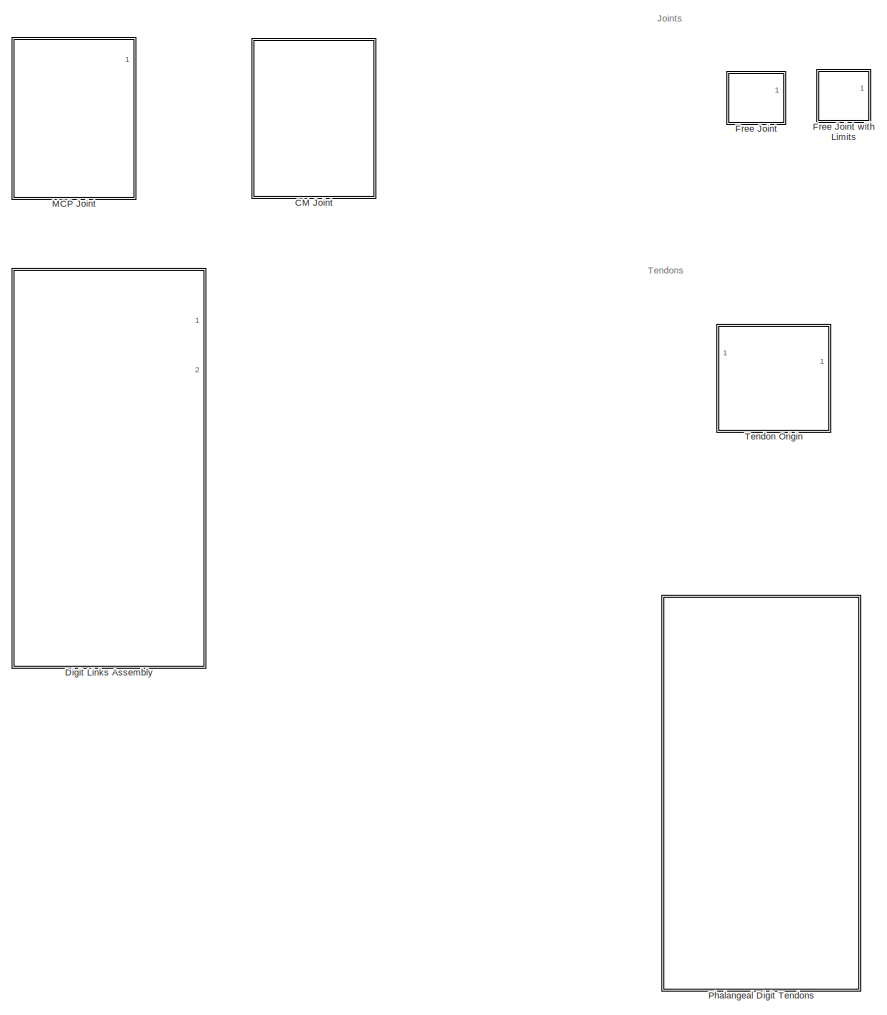
[diagram: root canvas - part 1/2, left side, full height]
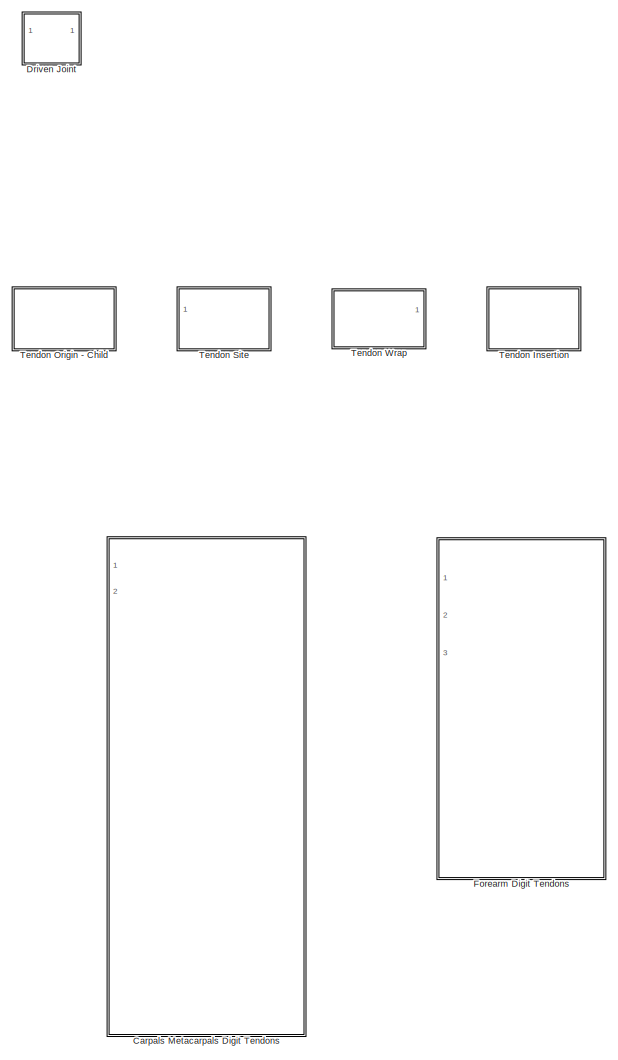
[diagram: root canvas - part 2/2, right side, full height]
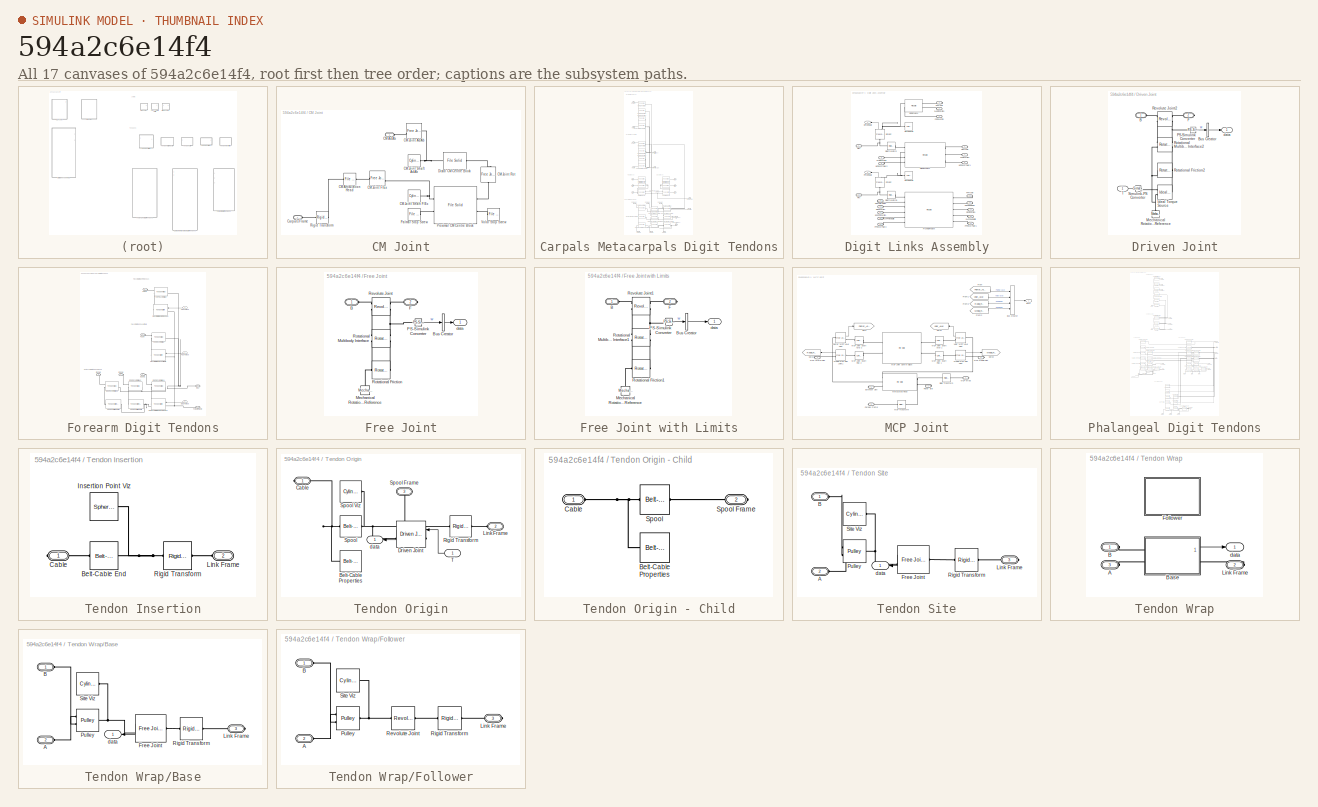
[diagram: thumbnail index - all 17 canvases of the model, root first then tree order]
MODEL slx_594a2c6e14f4
KIND library
CONFIG AbsTol = auto
CONFIG EnableMultiTasking = off
CONFIG FixedStep = auto
CONFIG MaxStep = auto
CONFIG MinStep = auto
CONFIG RelTol = 1e-3
CONFIG SampleTimeConstraint = Unconstrained
CONFIG SolverName = VariableStepAuto
CONFIG StartTime = 0.0
CONFIG StopTime = 10.0
BLOCK [SubSystem] CM Joint
  Ports = [0, 0, 0, 0, 0, 2]
  RequestExecContextInheritance = off
BLOCK [PMIOPort] CM Joint/CM AdAb
  Side = Left
BLOCK [Reference] CM Joint/CM Articulation Head  REF=sm_lib/Body Elements/File Solid
  Ports = [0, 0, 0, 0, 0, 1, 1]
  SourceBlock = sm_lib/Body Elements/File Solid
  SourceProductBaseCode = MS
  SourceType = File Solid
BLOCK [Reference] CM Joint/CM Joint AdAb  REF=$bdroot/Free Joint
with Limits
  Ports = [0, 1, 0, 0, 0, 1, 1]
  SourceBlock = $bdroot/Free Joint\nwith Limits
BLOCK [Reference] CM Joint/CM Joint FlEx  REF=$bdroot/Free Joint
with Limits
  Ports = [0, 1, 0, 0, 0, 1, 1]
  SourceBlock = $bdroot/Free Joint\nwith Limits
BLOCK [Reference] CM Joint/CM Joint Rot  REF=$bdroot/Free Joint
with Limits
  NameLocation = right
  Ports = [0, 1, 0, 0, 0, 1, 1]
  SourceBlock = $bdroot/Free Joint\nwith Limits
BLOCK [Reference] CM Joint/CM Joint Shaft AdAb  REF=sm_lib/Body Elements/Cylindrical Solid
  Ports = [0, 0, 0, 0, 0, 0, 1]
  SourceBlock = sm_lib/Body Elements/Cylindrical Solid
  SourceProductBaseCode = MS
  SourceType = Cylindrical Solid
BLOCK [Reference] CM Joint/CM Joint Shaft FlEx  REF=sm_lib/Body Elements/Cylindrical Solid
  Ports = [0, 0, 0, 0, 0, 0, 1]
  SourceBlock = sm_lib/Body Elements/Cylindrical Solid
  SourceProductBaseCode = MS
  SourceType = Cylindrical Solid
BLOCK [PMIOPort] CM Joint/Carpals Frame
  Port = 2
  Side = Left
BLOCK [Reference] CM Joint/Distal CM Centre Block  REF=sm_lib/Body Elements/File Solid
  Ports = [0, 0, 0, 0, 0, 1, 1]
  SourceBlock = sm_lib/Body Elements/File Solid
  SourceProductBaseCode = MS
  SourceType = File Solid
BLOCK [Reference] CM Joint/Palmar Stop Screw  REF=sm_lib/Body Elements/File Solid
  Ports = [0, 0, 0, 0, 0, 1]
  SourceBlock = sm_lib/Body Elements/File Solid
  SourceProductBaseCode = MS
  SourceType = File Solid
BLOCK [Reference] CM Joint/Proximal CM Centre Block  REF=sm_lib/Body Elements/File Solid
  Ports = [0, 0, 0, 0, 0, 2, 2]
  SourceBlock = sm_lib/Body Elements/File Solid
  SourceProductBaseCode = MS
  SourceType = File Solid
BLOCK [Reference] CM Joint/Rigid Transform  REF=sm_lib/Frames and
Transforms/Rigid
Transform
  Ports = [0, 0, 0, 0, 0, 1, 1]
  SourceBlock = sm_lib/Frames and\nTransforms/Rigid\nTransform
  SourceProductBaseCode = MS
  SourceType = Rigid\nTransform
BLOCK [Reference] CM Joint/Volar Stop Screw  REF=sm_lib/Body Elements/File Solid
  Ports = [0, 0, 0, 0, 0, 1]
  SourceBlock = sm_lib/Body Elements/File Solid
  SourceProductBaseCode = MS
  SourceType = File Solid
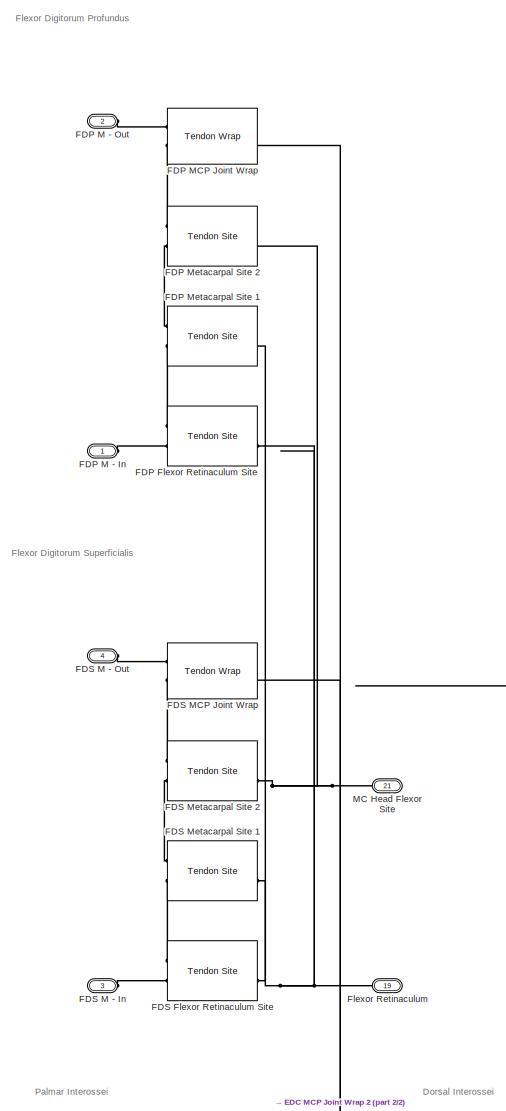
[diagram: Carpals Metacarpals Digit Tendons - part 1/2, top left region]
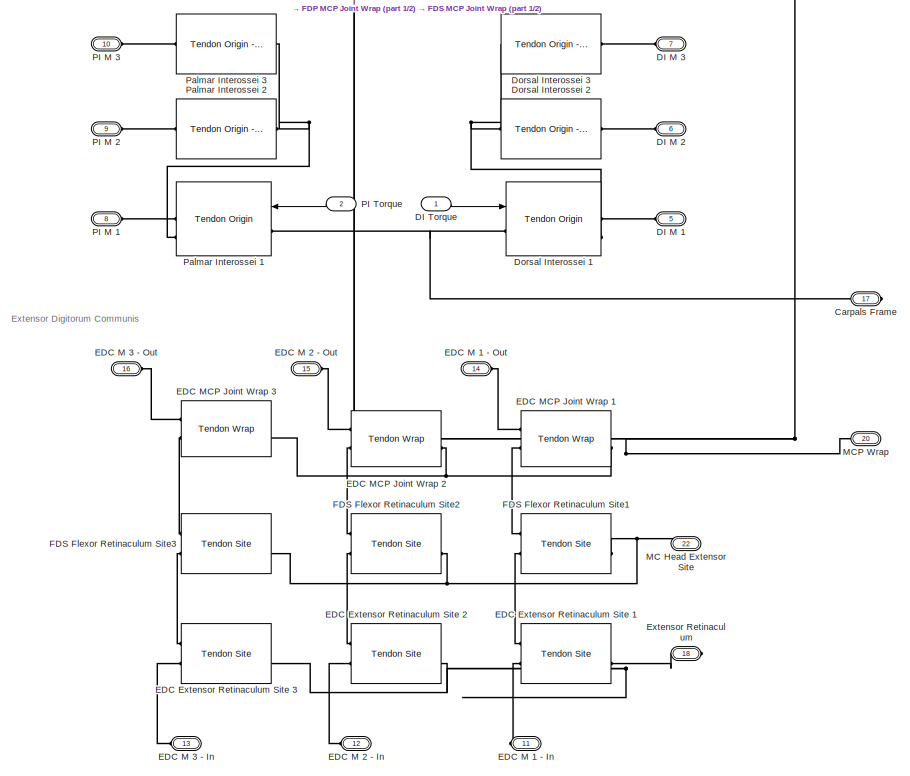
[diagram: Carpals Metacarpals Digit Tendons - part 2/2, full width, bottom band]
BLOCK [SubSystem] Carpals Metacarpals Digit Tendons
  PortSchema = {"entries":[{"content":{"sides":[{"content":{"connectorIds":["LConn1","LConn2","LConn3","LConn4","LConn5","LConn6","LConn7","LConn8","LConn9","LConn10","LConn11","LConn12","LConn13","LConn14","LConn15","LConn16"]},"type":"ConnectorPlacement.EquallySpacedRectSide","uuid":"60db6885-12b5-48fc-ac8b-01376daf6410"},{"content":{"connectorIds":["In1","In2","RConn1","RConn2","RConn3","RConn4","RConn5","RCo...<+444ch>
  Ports = [2, 0, 0, 0, 0, 16, 6]
  RequestExecContextInheritance = off
BLOCK [PMIOPort] Carpals Metacarpals Digit Tendons/Carpals Frame
  Port = 17
  Side = Right
BLOCK [PMIOPort] Carpals Metacarpals Digit Tendons/DI M 1
  Port = 5
  Side = Left
BLOCK [PMIOPort] Carpals Metacarpals Digit Tendons/DI M 2
  Port = 6
  Side = Left
BLOCK [PMIOPort] Carpals Metacarpals Digit Tendons/DI M 3
  Port = 7
  Side = Left
BLOCK [Inport] Carpals Metacarpals Digit Tendons/DI Torque
BLOCK [Reference] Carpals Metacarpals Digit Tendons/Dorsal Interossei 1  REF=$bdroot/Tendon Origin
  Ports = [1, 1, 0, 0, 0, 1, 2]
  SourceBlock = $bdroot/Tendon Origin
BLOCK [Reference] Carpals Metacarpals Digit Tendons/Dorsal Interossei 2  REF=$bdroot/Tendon Origin - Child
  Ports = [0, 0, 0, 0, 0, 1, 1]
  SourceBlock = $bdroot/Tendon Origin - Child
BLOCK [Reference] Carpals Metacarpals Digit Tendons/Dorsal Interossei 3  REF=$bdroot/Tendon Origin - Child
  Ports = [0, 0, 0, 0, 0, 1, 1]
  SourceBlock = $bdroot/Tendon Origin - Child
BLOCK [Reference] Carpals Metacarpals Digit Tendons/EDC Extensor Retinaculum Site 1  REF=$bdroot/Tendon Site
  Ports = [0, 1, 0, 0, 0, 2, 1]
  SourceBlock = $bdroot/Tendon Site
BLOCK [Reference] Carpals Metacarpals Digit Tendons/EDC Extensor Retinaculum Site 2  REF=$bdroot/Tendon Site
  Ports = [0, 1, 0, 0, 0, 2, 1]
  SourceBlock = $bdroot/Tendon Site
BLOCK [Reference] Carpals Metacarpals Digit Tendons/EDC Extensor Retinaculum Site 3  REF=$bdroot/Tendon Site
  Ports = [0, 1, 0, 0, 0, 2, 1]
  SourceBlock = $bdroot/Tendon Site
BLOCK [PMIOPort] Carpals Metacarpals Digit Tendons/EDC M 1 - In
  Port = 11
  Side = Left
BLOCK [PMIOPort] Carpals Metacarpals Digit Tendons/EDC M 1 - Out
  Port = 14
  Side = Left
BLOCK [PMIOPort] Carpals Metacarpals Digit Tendons/EDC M 2 - In
  Port = 12
  Side = Left
BLOCK [PMIOPort] Carpals Metacarpals Digit Tendons/EDC M 2 - Out
  Port = 15
  Side = Left
BLOCK [PMIOPort] Carpals Metacarpals Digit Tendons/EDC M 3 - In
  Port = 13
  Side = Left
BLOCK [PMIOPort] Carpals Metacarpals Digit Tendons/EDC M 3 - Out
  Port = 16
  Side = Left
BLOCK [Reference] Carpals Metacarpals Digit Tendons/EDC MCP Joint Wrap 1  REF=$bdroot/Tendon Wrap
  Ports = [0, 1, 0, 0, 0, 2, 1]
  SourceBlock = $bdroot/Tendon Wrap
BLOCK [Reference] Carpals Metacarpals Digit Tendons/EDC MCP Joint Wrap 2  REF=$bdroot/Tendon Wrap
  Ports = [0, 1, 0, 0, 0, 2, 1]
  SourceBlock = $bdroot/Tendon Wrap
BLOCK [Reference] Carpals Metacarpals Digit Tendons/EDC MCP Joint Wrap 3  REF=$bdroot/Tendon Wrap
  Ports = [0, 1, 0, 0, 0, 2, 1]
  SourceBlock = $bdroot/Tendon Wrap
BLOCK [PMIOPort] Carpals Metacarpals Digit Tendons/Extensor Retinaculum
  Port = 18
  Side = Right
BLOCK [Reference] Carpals Metacarpals Digit Tendons/FDP Flexor Retinaculum Site  REF=$bdroot/Tendon Site
  Ports = [0, 1, 0, 0, 0, 2, 1]
  SourceBlock = $bdroot/Tendon Site
BLOCK [PMIOPort] Carpals Metacarpals Digit Tendons/FDP M - In
  Side = Left
BLOCK [PMIOPort] Carpals Metacarpals Digit Tendons/FDP M - Out
  Port = 2
  Side = Left
BLOCK [Reference] Carpals Metacarpals Digit Tendons/FDP MCP Joint Wrap  REF=$bdroot/Tendon Wrap
  Ports = [0, 1, 0, 0, 0, 2, 1]
  SourceBlock = $bdroot/Tendon Wrap
BLOCK [Reference] Carpals Metacarpals Digit Tendons/FDP Metacarpal Site 1  REF=$bdroot/Tendon Site
  Ports = [0, 1, 0, 0, 0, 2, 1]
  SourceBlock = $bdroot/Tendon Site
BLOCK [Reference] Carpals Metacarpals Digit Tendons/FDP Metacarpal Site 2  REF=$bdroot/Tendon Site
  Ports = [0, 1, 0, 0, 0, 2, 1]
  SourceBlock = $bdroot/Tendon Site
BLOCK [Reference] Carpals Metacarpals Digit Tendons/FDS Flexor Retinaculum Site  REF=$bdroot/Tendon Site
  Ports = [0, 1, 0, 0, 0, 2, 1]
  SourceBlock = $bdroot/Tendon Site
BLOCK [Reference] Carpals Metacarpals Digit Tendons/FDS Flexor Retinaculum Site1  REF=$bdroot/Tendon Site
  Ports = [0, 1, 0, 0, 0, 2, 1]
  SourceBlock = $bdroot/Tendon Site
BLOCK [Reference] Carpals Metacarpals Digit Tendons/FDS Flexor Retinaculum Site2  REF=$bdroot/Tendon Site
  Ports = [0, 1, 0, 0, 0, 2, 1]
  SourceBlock = $bdroot/Tendon Site
BLOCK [Reference] Carpals Metacarpals Digit Tendons/FDS Flexor Retinaculum Site3  REF=$bdroot/Tendon Site
  Ports = [0, 1, 0, 0, 0, 2, 1]
  SourceBlock = $bdroot/Tendon Site
BLOCK [PMIOPort] Carpals Metacarpals Digit Tendons/FDS M - In
  Port = 3
  Side = Left
BLOCK [PMIOPort] Carpals Metacarpals Digit Tendons/FDS M - Out
  Port = 4
  Side = Left
BLOCK [Reference] Carpals Metacarpals Digit Tendons/FDS MCP Joint Wrap  REF=$bdroot/Tendon Wrap
  Ports = [0, 1, 0, 0, 0, 2, 1]
  SourceBlock = $bdroot/Tendon Wrap
BLOCK [Reference] Carpals Metacarpals Digit Tendons/FDS Metacarpal Site 1  REF=$bdroot/Tendon Site
  Ports = [0, 1, 0, 0, 0, 2, 1]
  SourceBlock = $bdroot/Tendon Site
BLOCK [Reference] Carpals Metacarpals Digit Tendons/FDS Metacarpal Site 2  REF=$bdroot/Tendon Site
  Ports = [0, 1, 0, 0, 0, 2, 1]
  SourceBlock = $bdroot/Tendon Site
BLOCK [PMIOPort] Carpals Metacarpals Digit Tendons/Flexor Retinaculum
  Port = 19
  Side = Right
BLOCK [PMIOPort] Carpals Metacarpals Digit Tendons/MC Head Extensor Site
  Port = 22
  Side = Right
BLOCK [PMIOPort] Carpals Metacarpals Digit Tendons/MC Head Flexor Site
  Port = 21
  Side = Right
BLOCK [PMIOPort] Carpals Metacarpals Digit Tendons/MCP Wrap
  Port = 20
  Side = Right
BLOCK [PMIOPort] Carpals Metacarpals Digit Tendons/PI M 1
  Port = 8
  Side = Left
BLOCK [PMIOPort] Carpals Metacarpals Digit Tendons/PI M 2
  Port = 9
  Side = Left
BLOCK [PMIOPort] Carpals Metacarpals Digit Tendons/PI M 3
  Port = 10
  Side = Left
BLOCK [Inport] Carpals Metacarpals Digit Tendons/PI Torque
  Port = 2
BLOCK [Reference] Carpals Metacarpals Digit Tendons/Palmar Interossei 1  REF=$bdroot/Tendon Origin
  Ports = [1, 1, 0, 0, 0, 1, 2]
  SourceBlock = $bdroot/Tendon Origin
BLOCK [Reference] Carpals Metacarpals Digit Tendons/Palmar Interossei 2  REF=$bdroot/Tendon Origin - Child
  Ports = [0, 0, 0, 0, 0, 1, 1]
  SourceBlock = $bdroot/Tendon Origin - Child
BLOCK [Reference] Carpals Metacarpals Digit Tendons/Palmar Interossei 3  REF=$bdroot/Tendon Origin - Child
  Ports = [0, 0, 0, 0, 0, 1, 1]
  SourceBlock = $bdroot/Tendon Origin - Child
BLOCK [SubSystem] Digit Links Assembly
  Ports = [0, 2, 0, 0, 0, 15, 5]
  RequestExecContextInheritance = off
BLOCK [PMIOPort] Digit Links Assembly/DA DP Insertion
  Port = 2
  Side = Left
BLOCK [PMIOPort] Digit Links Assembly/DA MP Insertion
  Port = 8
  Side = Left
BLOCK [PMIOPort] Digit Links Assembly/DA PP Medial Site
  Port = 16
  Side = Left
BLOCK [PMIOPort] Digit Links Assembly/DA PP Radial Site
  Port = 15
  Side = Left
BLOCK [PMIOPort] Digit Links Assembly/DI PP Insertion
  Port = 13
  Side = Left
BLOCK [PMIOPort] Digit Links Assembly/DIP J
  Port = 4
  Side = Left
BLOCK [Reference] Digit Links Assembly/DIP Joint  REF=$bdroot/Free Joint
with Limits
  NameLocation = right
  Ports = [0, 1, 0, 0, 0, 1, 1]
  SourceBlock = $bdroot/Free Joint\nwith Limits
BLOCK [Reference] Digit Links Assembly/DIP Joint Shaft  REF=sm_lib/Body Elements/Cylindrical Solid
  Ports = [0, 0, 0, 0, 0, 0, 1]
  SourceBlock = sm_lib/Body Elements/Cylindrical Solid
  SourceProductBaseCode = MS
  SourceType = Cylindrical Solid
BLOCK [Outport] Digit Links Assembly/DIP Joint data
BLOCK [PMIOPort] Digit Links Assembly/DP Frame
  Port = 3
  Side = Right
BLOCK [Reference] Digit Links Assembly/Distal Phalanx  REF=sm_lib/Body Elements/File Solid
  Ports = [0, 0, 0, 0, 0, 2, 2]
  SourceBlock = sm_lib/Body Elements/File Solid
  SourceProductBaseCode = MS
  SourceType = File Solid
BLOCK [PMIOPort] Digit Links Assembly/EDC PP Insertion
  Port = 17
  Side = Left
BLOCK [PMIOPort] Digit Links Assembly/FDP Insertion
  Side = Left
BLOCK [PMIOPort] Digit Links Assembly/FDS Insertion
  Port = 7
  Side = Left
BLOCK [PMIOPort] Digit Links Assembly/MCP Lateral FlEx
  Port = 18
  Side = Right
BLOCK [PMIOPort] Digit Links Assembly/MCP Medial FlEx
  Port = 19
  Side = Right
BLOCK [PMIOPort] Digit Links Assembly/MP Flexor Pulley 1
  Port = 5
  Side = Left
BLOCK [PMIOPort] Digit Links Assembly/MP Flexor Pulley 2
  Port = 6
  Side = Left
BLOCK [PMIOPort] Digit Links Assembly/MP Frame
  Port = 9
  Side = Right
BLOCK [Reference] Digit Links Assembly/Middle Phalanx  REF=sm_lib/Body Elements/File Solid
  Ports = [0, 0, 0, 0, 0, 4, 3]
  SourceBlock = sm_lib/Body Elements/File Solid
  SourceProductBaseCode = MS
  SourceType = File Solid
BLOCK [PMIOPort] Digit Links Assembly/PI PP Insertion
  Port = 14
  Side = Left
BLOCK [PMIOPort] Digit Links Assembly/PIP J
  Port = 10
  Side = Left
BLOCK [Reference] Digit Links Assembly/PIP Joint  REF=$bdroot/Free Joint
with Limits
  NameLocation = right
  Ports = [0, 1, 0, 0, 0, 1, 1]
  SourceBlock = $bdroot/Free Joint\nwith Limits
BLOCK [Reference] Digit Links Assembly/PIP Joint Shaft  REF=sm_lib/Body Elements/Cylindrical Solid
  Ports = [0, 0, 0, 0, 0, 0, 1]
  SourceBlock = sm_lib/Body Elements/Cylindrical Solid
  SourceProductBaseCode = MS
  SourceType = Cylindrical Solid
BLOCK [Outport] Digit Links Assembly/PIP Joint data
  Port = 2
BLOCK [PMIOPort] Digit Links Assembly/PP Flexor Pulley 1
  Port = 11
  Side = Left
BLOCK [PMIOPort] Digit Links Assembly/PP Flexor Pulley 2
  Port = 12
  Side = Left
BLOCK [PMIOPort] Digit Links Assembly/PP Frame
  Port = 20
  Side = Right
BLOCK [Reference] Digit Links Assembly/Proximal Phalanx  REF=sm_lib/Body Elements/File Solid
  Ports = [0, 0, 0, 0, 0, 6, 5]
  SourceBlock = sm_lib/Body Elements/File Solid
  SourceProductBaseCode = MS
  SourceType = File Solid
BLOCK [Reference] Digit Links Assembly/Rigid Transform  REF=sm_lib/Frames and
Transforms/Rigid
Transform
  Ports = [0, 0, 0, 0, 0, 1, 1]
  SourceBlock = sm_lib/Frames and\nTransforms/Rigid\nTransform
  SourceProductBaseCode = MS
  SourceType = Rigid\nTransform
BLOCK [Reference] Digit Links Assembly/Rigid Transform1  REF=sm_lib/Frames and
Transforms/Rigid
Transform
  Ports = [0, 0, 0, 0, 0, 1, 1]
  SourceBlock = sm_lib/Frames and\nTransforms/Rigid\nTransform
  SourceProductBaseCode = MS
  SourceType = Rigid\nTransform
BLOCK [SubSystem] Driven Joint
  PortSchema = {"entries":[{"content":{"sides":[{"content":{"connectorIds":["LConn1","In1"]},"type":"ConnectorPlacement.EquallySpacedRectSide","uuid":"e5e6dd15-2118-440e-938c-c0fb16d72d0e"},{"content":{"connectorIds":["RConn1","Out1"],"side":"RIGHT"},"type":"ConnectorPlacement.EquallySpacedRectSide","uuid":"fa0be162-332f-44c0-b862-c5227b0a08b3"},{"content":{"connectorIds":[],"side":"TOP"},"type":"ConnectorPlacem...<+258ch>
  Ports = [1, 1, 0, 0, 0, 1, 1]
  RequestExecContextInheritance = off
BLOCK [PMIOPort] Driven Joint/B
  Side = Left
BLOCK [BusCreator] Driven Joint/Bus Creator
  DisplayOption = bar
  InheritFromInputs = on
  Inputs = 1
  Ports = [1, 1]
BLOCK [PMIOPort] Driven Joint/F
  Port = 2
  Side = Right
BLOCK [Reference] Driven Joint/Ideal Torque Source  REF=fl_lib/Mechanical/Mechanical Sources/Ideal Torque Source
  Ports = [0, 0, 0, 0, 0, 1, 2]
  SourceBlock = fl_lib/Mechanical/Mechanical Sources/Ideal Torque Source
  SourceProductBaseCode = SS
  SourceType = Ideal Torque Source
BLOCK [Reference] Driven Joint/Mechanical Rotational Reference  REF=fl_lib/Mechanical/Rotational Elements/Mechanical
Rotational Reference
  NameLocation = right
  Ports = [0, 0, 0, 0, 0, 1]
  SourceBlock = fl_lib/Mechanical/Rotational Elements/Mechanical\nRotational Reference
  SourceProductBaseCode = SS
  SourceType = Mechanical\nRotational Reference
BLOCK [Reference] Driven Joint/PS-Simulink Converter  REF=nesl_utility/PS-Simulink
Converter
  Ports = [0, 1, 0, 0, 0, 1]
  SourceBlock = nesl_utility/PS-Simulink\nConverter
  SourceProductBaseCode = PW,SS
  SourceType = PS-Simulink\nConverter
BLOCK [Reference] Driven Joint/Revolute Joint2  REF=sm_lib/Joints/Revolute Joint
  Ports = [0, 0, 0, 0, 0, 2, 2]
  SourceBlock = sm_lib/Joints/Revolute Joint
  SourceProductBaseCode = MS
  SourceType = Revolute Joint
BLOCK [Reference] Driven Joint/Rotational Friction2  REF=fl_lib/Mechanical/Rotational Elements/Rotational Friction
  Ports = [0, 0, 0, 0, 0, 1, 1]
  SourceBlock = fl_lib/Mechanical/Rotational Elements/Rotational Friction
  SourceProductBaseCode = SS
  SourceType = Rotational Friction
BLOCK [Reference] Driven Joint/Rotational Multibody Interface2  REF=fl_lib/Mechanical/Multibody Interfaces/Rotational Multibody
Interface
  Ports = [0, 0, 0, 0, 0, 2, 2]
  SourceBlock = fl_lib/Mechanical/Multibody Interfaces/Rotational Multibody\nInterface
  SourceProductBaseCode = SS
  SourceType = Rotational Multibody\nInterface
BLOCK [Reference] Driven Joint/Simulink-PS Converter  REF=nesl_utility/Simulink-PS
Converter
  Ports = [1, 0, 0, 0, 0, 0, 1]
  SourceBlock = nesl_utility/Simulink-PS\nConverter
  SourceProductBaseCode = PW,SS
  SourceType = Simulink-PS\nConverter
BLOCK [Inport] Driven Joint/T
BLOCK [Outport] Driven Joint/data
BLOCK [SubSystem] Forearm Digit Tendons
  PortSchema = {"entries":[{"content":{"sides":[{"content":{"connectorIds":["LConn1","LConn2","LConn3","LConn4","LConn5"]},"type":"ConnectorPlacement.EquallySpacedRectSide","uuid":"1ae67fd8-e19a-4a21-bbac-94dd8bef27d4"},{"content":{"connectorIds":["In1","In2","In3","RConn1","RConn2"],"side":"RIGHT"},"type":"ConnectorPlacement.EquallySpacedRectSide","uuid":"5764f07b-84d9-41bf-bf6c-f0b4c15cdb1c"},{"content":{"conn...<+308ch>
  Ports = [3, 0, 0, 0, 0, 5, 2]
  RequestExecContextInheritance = off
BLOCK [PMIOPort] Forearm Digit Tendons/EDC M 1
  Side = Left
BLOCK [PMIOPort] Forearm Digit Tendons/EDC M 2
  Port = 2
  Side = Left
BLOCK [PMIOPort] Forearm Digit Tendons/EDC M 3
  Port = 3
  Side = Left
BLOCK [Reference] Forearm Digit Tendons/EDC RC Joint Wrap 1  REF=$bdroot/Tendon Wrap
  Ports = [0, 1, 0, 0, 0, 2, 1]
  SourceBlock = $bdroot/Tendon Wrap
BLOCK [Reference] Forearm Digit Tendons/EDC RC Joint Wrap 2  REF=$bdroot/Tendon Wrap
  Ports = [0, 1, 0, 0, 0, 2, 1]
  SourceBlock = $bdroot/Tendon Wrap
BLOCK [Reference] Forearm Digit Tendons/EDC RC Joint Wrap 3  REF=$bdroot/Tendon Wrap
  Ports = [0, 1, 0, 0, 0, 2, 1]
  SourceBlock = $bdroot/Tendon Wrap
BLOCK [Inport] Forearm Digit Tendons/EDC Torque
  Port = 3
BLOCK [Reference] Forearm Digit Tendons/Extensor Digitotum Communis 1  REF=$bdroot/Tendon Origin
  Ports = [1, 1, 0, 0, 0, 1, 2]
  SourceBlock = $bdroot/Tendon Origin
BLOCK [PMIOPort] Forearm Digit Tendons/FDP M
  Port = 5
  Side = Left
BLOCK [Reference] Forearm Digit Tendons/FDP RC Joint Wrap  REF=$bdroot/Tendon Wrap
  Ports = [0, 1, 0, 0, 0, 2, 1]
  SourceBlock = $bdroot/Tendon Wrap
BLOCK [Inport] Forearm Digit Tendons/FDP Torque
BLOCK [PMIOPort] Forearm Digit Tendons/FDS M
  Port = 4
  Side = Left
BLOCK [Reference] Forearm Digit Tendons/FDS RC Joint Wrap  REF=$bdroot/Tendon Wrap
  Ports = [0, 1, 0, 0, 0, 2, 1]
  SourceBlock = $bdroot/Tendon Wrap
BLOCK [Inport] Forearm Digit Tendons/FDS Torque
  Port = 2
BLOCK [Reference] Forearm Digit Tendons/Flexor Digitorum Profundus  REF=$bdroot/Tendon Origin
  Ports = [1, 1, 0, 0, 0, 1, 2]
  SourceBlock = $bdroot/Tendon Origin
BLOCK [Reference] Forearm Digit Tendons/Flexor Digitorum Superficialis  REF=$bdroot/Tendon Origin
  Ports = [1, 1, 0, 0, 0, 1, 2]
  SourceBlock = $bdroot/Tendon Origin
BLOCK [PMIOPort] Forearm Digit Tendons/Forearm Frame
  Port = 7
  Side = Right
BLOCK [PMIOPort] Forearm Digit Tendons/RC J
  Port = 6
  Side = Right
BLOCK [Reference] Forearm Digit Tendons/Tendon Origin - Child  REF=$bdroot/Tendon Origin - Child
  Ports = [0, 0, 0, 0, 0, 1, 1]
  SourceBlock = $bdroot/Tendon Origin - Child
BLOCK [Reference] Forearm Digit Tendons/Tendon Origin - Child1  REF=$bdroot/Tendon Origin - Child
  Ports = [0, 0, 0, 0, 0, 1, 1]
  SourceBlock = $bdroot/Tendon Origin - Child
BLOCK [SubSystem] Free Joint
  PortSchema = {"entries":[{"content":{"sides":[{"content":{"connectorIds":["LConn1"]},"type":"ConnectorPlacement.EquallySpacedRectSide","uuid":"5c544101-8e50-43e4-a618-7c27c040455d"},{"content":{"connectorIds":["RConn1","Out1"],"side":"RIGHT"},"type":"ConnectorPlacement.EquallySpacedRectSide","uuid":"109021c2-b344-432f-b370-35cd4bc133c9"},{"content":{"connectorIds":[],"side":"TOP"},"type":"ConnectorPlacement.Eq...<+252ch>
  Ports = [0, 1, 0, 0, 0, 1, 1]
  RequestExecContextInheritance = off
BLOCK [SubSystem] Free Joint with Limits
  Ports = [0, 1, 0, 0, 0, 1, 1]
  RequestExecContextInheritance = off
BLOCK [PMIOPort] Free Joint with Limits/B
  Side = Left
BLOCK [BusCreator] Free Joint with Limits/Bus Creator
  DisplayOption = bar
  InheritFromInputs = on
  Inputs = 1
  Ports = [1, 1]
BLOCK [PMIOPort] Free Joint with Limits/F
  Port = 2
  Side = Right
BLOCK [Reference] Free Joint with Limits/Mechanical Rotational Reference  REF=fl_lib/Mechanical/Rotational Elements/Mechanical
Rotational Reference
  NameLocation = right
  Ports = [0, 0, 0, 0, 0, 1]
  SourceBlock = fl_lib/Mechanical/Rotational Elements/Mechanical\nRotational Reference
  SourceProductBaseCode = SS
  SourceType = Mechanical\nRotational Reference
BLOCK [Reference] Free Joint with Limits/PS-Simulink Converter  REF=nesl_utility/PS-Simulink
Converter
  Ports = [0, 1, 0, 0, 0, 1]
  SourceBlock = nesl_utility/PS-Simulink\nConverter
  SourceProductBaseCode = PW,SS
  SourceType = PS-Simulink\nConverter
BLOCK [Reference] Free Joint with Limits/Revolute Joint1  REF=sm_lib/Joints/Revolute Joint
  Ports = [0, 0, 0, 0, 0, 2, 2]
  SourceBlock = sm_lib/Joints/Revolute Joint
  SourceProductBaseCode = MS
  SourceType = Revolute Joint
BLOCK [Reference] Free Joint with Limits/Rotational Friction1  REF=fl_lib/Mechanical/Rotational Elements/Rotational Friction
  Ports = [0, 0, 0, 0, 0, 1, 1]
  SourceBlock = fl_lib/Mechanical/Rotational Elements/Rotational Friction
  SourceProductBaseCode = SS
  SourceType = Rotational Friction
BLOCK [Reference] Free Joint with Limits/Rotational Multibody Interface1  REF=fl_lib/Mechanical/Multibody Interfaces/Rotational Multibody
Interface
  Ports = [0, 0, 0, 0, 0, 2, 2]
  SourceBlock = fl_lib/Mechanical/Multibody Interfaces/Rotational Multibody\nInterface
  SourceProductBaseCode = SS
  SourceType = Rotational Multibody\nInterface
BLOCK [Outport] Free Joint with Limits/data
BLOCK [PMIOPort] Free Joint/B
  Side = Left
BLOCK [BusCreator] Free Joint/Bus Creator
  DisplayOption = bar
  InheritFromInputs = on
  Inputs = 1
  Ports = [1, 1]
BLOCK [PMIOPort] Free Joint/F
  Port = 2
  Side = Right
BLOCK [Reference] Free Joint/Mechanical Rotational Reference  REF=fl_lib/Mechanical/Rotational Elements/Mechanical
Rotational Reference
  NameLocation = right
  Ports = [0, 0, 0, 0, 0, 1]
  SourceBlock = fl_lib/Mechanical/Rotational Elements/Mechanical\nRotational Reference
  SourceProductBaseCode = SS
  SourceType = Mechanical\nRotational Reference
BLOCK [Reference] Free Joint/PS-Simulink Converter  REF=nesl_utility/PS-Simulink
Converter
  Ports = [0, 1, 0, 0, 0, 1]
  SourceBlock = nesl_utility/PS-Simulink\nConverter
  SourceProductBaseCode = PW,SS
  SourceType = PS-Simulink\nConverter
BLOCK [Reference] Free Joint/Revolute Joint  REF=sm_lib/Joints/Revolute Joint
  Ports = [0, 0, 0, 0, 0, 2, 2]
  SourceBlock = sm_lib/Joints/Revolute Joint
  SourceProductBaseCode = MS
  SourceType = Revolute Joint
BLOCK [Reference] Free Joint/Rotational Friction  REF=fl_lib/Mechanical/Rotational Elements/Rotational Friction
  Ports = [0, 0, 0, 0, 0, 1, 1]
  SourceBlock = fl_lib/Mechanical/Rotational Elements/Rotational Friction
  SourceProductBaseCode = SS
  SourceType = Rotational Friction
BLOCK [Reference] Free Joint/Rotational Multibody Interface  REF=fl_lib/Mechanical/Multibody Interfaces/Rotational Multibody
Interface
  Ports = [0, 0, 0, 0, 0, 2, 2]
  SourceBlock = fl_lib/Mechanical/Multibody Interfaces/Rotational Multibody\nInterface
  SourceProductBaseCode = SS
  SourceType = Rotational Multibody\nInterface
BLOCK [Outport] Free Joint/data
BLOCK [SubSystem] MCP Joint
  Ports = [0, 1, 0, 0, 0, 0, 6]
  RequestExecContextInheritance = off
BLOCK [BusCreator] MCP Joint/Bus Creator
  DisplayOption = bar
  InheritFromInputs = on
  Inputs = 4
  Ports = [4, 1]
BLOCK [PMIOPort] MCP Joint/Carpals Frame
  Port = 6
  Side = Right
BLOCK [PMIOPort] MCP Joint/Extensor Site
  Port = 5
  Side = Right
BLOCK [PMIOPort] MCP Joint/Flexor Site
  Port = 4
  Side = Right
BLOCK [From] MCP Joint/From
  GotoTag = Palmar_AdAb
BLOCK [From] MCP Joint/From1
  GotoTag = Volar_AdAb
BLOCK [From] MCP Joint/From2
  GotoTag = Medial_FlEx
BLOCK [From] MCP Joint/From3
  GotoTag = Radial_FlEx
BLOCK [Goto] MCP Joint/Goto
  GotoTag = Palmar_AdAb
BLOCK [Goto] MCP Joint/Goto1
  GotoTag = Volar_AdAb
BLOCK [Goto] MCP Joint/Goto2
  GotoTag = Medial_FlEx
BLOCK [Goto] MCP Joint/Goto3
  GotoTag = Radial_FlEx
BLOCK [Reference] MCP Joint/MCP Joint Centre Block  REF=sm_lib/Body Elements/File Solid
  Ports = [0, 0, 0, 0, 0, 2, 2]
  SourceBlock = sm_lib/Body Elements/File Solid
  SourceProductBaseCode = MS
  SourceType = File Solid
BLOCK [Reference] MCP Joint/MCP Joint Shaft AdAb 1  REF=sm_lib/Body Elements/Cylindrical Solid
  Ports = [0, 0, 0, 0, 0, 1, 1]
  SourceBlock = sm_lib/Body Elements/Cylindrical Solid
  SourceProductBaseCode = MS
  SourceType = Cylindrical Solid
BLOCK [Reference] MCP Joint/MCP Joint Shaft AdAb 2  REF=sm_lib/Body Elements/Cylindrical Solid
  Ports = [0, 0, 0, 0, 0, 1, 1]
  SourceBlock = sm_lib/Body Elements/Cylindrical Solid
  SourceProductBaseCode = MS
  SourceType = Cylindrical Solid
BLOCK [Reference] MCP Joint/MCP Joint Shaft FlEx 1  REF=sm_lib/Body Elements/Cylindrical Solid
  Ports = [0, 0, 0, 0, 0, 1, 1]
  SourceBlock = sm_lib/Body Elements/Cylindrical Solid
  SourceProductBaseCode = MS
  SourceType = Cylindrical Solid
BLOCK [Reference] MCP Joint/MCP Joint Shaft FlEx 2  REF=sm_lib/Body Elements/Cylindrical Solid
  Ports = [0, 0, 0, 0, 0, 1, 1]
  SourceBlock = sm_lib/Body Elements/Cylindrical Solid
  SourceProductBaseCode = MS
  SourceType = Cylindrical Solid
BLOCK [PMIOPort] MCP Joint/MCP Lateral FlEx
  Side = Right
BLOCK [PMIOPort] MCP Joint/MCP Medial FlEx
  Port = 2
  Side = Right
BLOCK [Reference] MCP Joint/MCP Transform  REF=sm_lib/Frames and
Transforms/Rigid
Transform
  Ports = [0, 0, 0, 0, 0, 1, 1]
  SourceBlock = sm_lib/Frames and\nTransforms/Rigid\nTransform
  SourceProductBaseCode = MS
  SourceType = Rigid\nTransform
BLOCK [PMIOPort] MCP Joint/MCP Wrap
  Port = 3
  Side = Right
BLOCK [Reference] MCP Joint/Medial MCP FlEx Joint  REF=$bdroot/Free Joint
with Limits
  Ports = [0, 1, 0, 0, 0, 1, 1]
  SourceBlock = $bdroot/Free Joint\nwith Limits
BLOCK [Reference] MCP Joint/Medial MCP FlEx Joint1  REF=$bdroot/Free Joint
with Limits
  Ports = [0, 1, 0, 0, 0, 1, 1]
  SourceBlock = $bdroot/Free Joint\nwith Limits
BLOCK [Reference] MCP Joint/Metacarpal Head  REF=sm_lib/Body Elements/File Solid
  Ports = [0, 0, 0, 0, 0, 3, 2]
  SourceBlock = sm_lib/Body Elements/File Solid
  SourceProductBaseCode = MS
  SourceType = File Solid
BLOCK [Reference] MCP Joint/Palmar MCP AdAb Joint  REF=$bdroot/Free Joint
with Limits
  Ports = [0, 1, 0, 0, 0, 1, 1]
  SourceBlock = $bdroot/Free Joint\nwith Limits
BLOCK [Reference] MCP Joint/Rigid Transform  REF=sm_lib/Frames and
Transforms/Rigid
Transform
  Ports = [0, 0, 0, 0, 0, 1, 1]
  SourceBlock = sm_lib/Frames and\nTransforms/Rigid\nTransform
  SourceProductBaseCode = MS
  SourceType = Rigid\nTransform
BLOCK [Reference] MCP Joint/Volar MCP AdAb Joint  REF=$bdroot/Free Joint
with Limits
  Ports = [0, 1, 0, 0, 0, 1, 1]
  SourceBlock = $bdroot/Free Joint\nwith Limits
BLOCK [Outport] MCP Joint/data
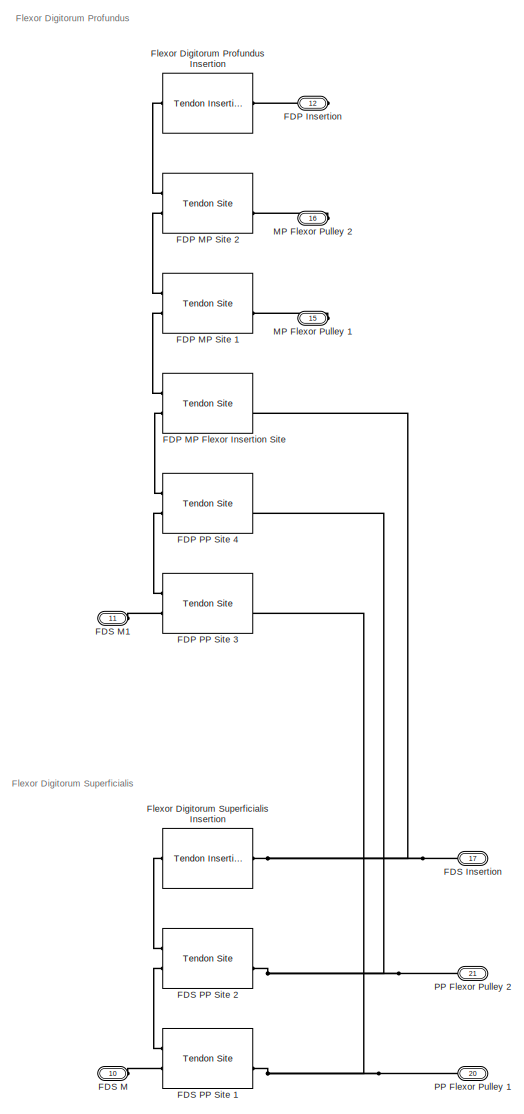
[diagram: Phalangeal Digit Tendons - part 1/5, top left region]
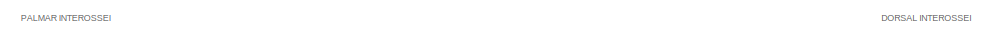
[diagram: Phalangeal Digit Tendons - part 2/5, middle left region]
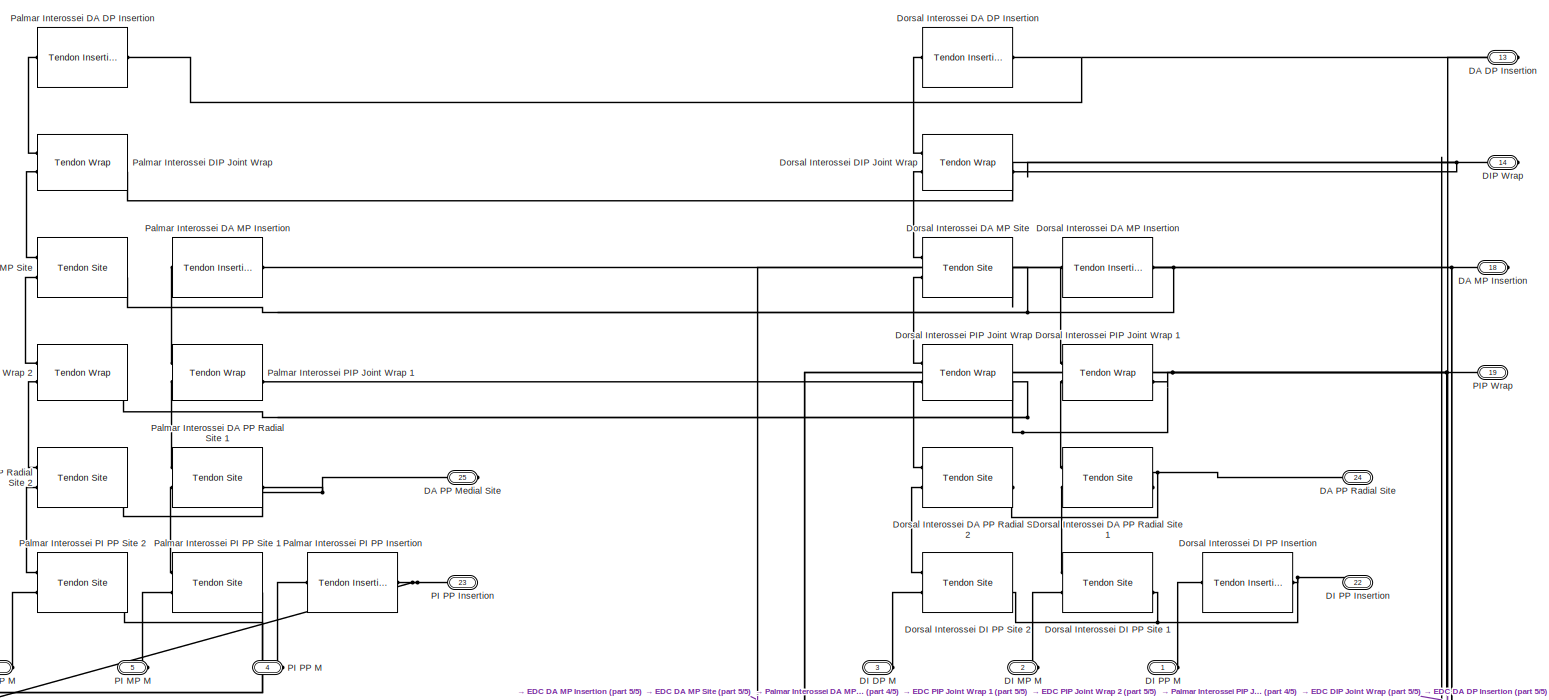
[diagram: Phalangeal Digit Tendons - part 3/5, full width, middle band]
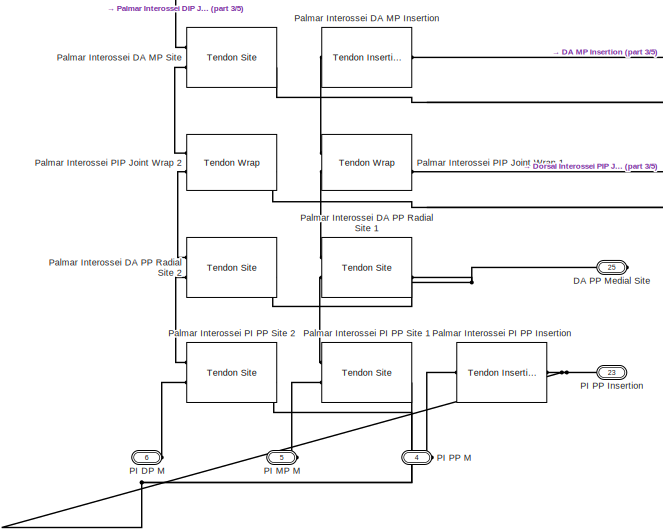
[diagram: Phalangeal Digit Tendons - part 4/5, middle left region]
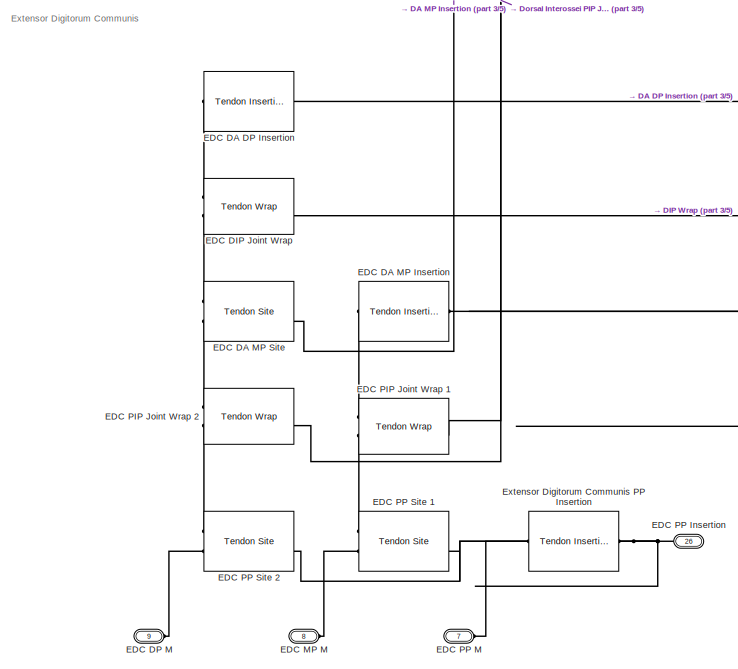
[diagram: Phalangeal Digit Tendons - part 5/5, bottom center region]
BLOCK [SubSystem] Phalangeal Digit Tendons
  Ports = [0, 0, 0, 0, 0, 11, 15]
  RequestExecContextInheritance = off
BLOCK [PMIOPort] Phalangeal Digit Tendons/DA DP Insertion
  Port = 13
  Side = Right
BLOCK [PMIOPort] Phalangeal Digit Tendons/DA MP Insertion
  Port = 18
  Side = Right
BLOCK [PMIOPort] Phalangeal Digit Tendons/DA PP Medial Site
  Port = 25
  Side = Right
BLOCK [PMIOPort] Phalangeal Digit Tendons/DA PP Radial Site
  Port = 24
  Side = Right
BLOCK [PMIOPort] Phalangeal Digit Tendons/DI DP M
  Port = 3
  Side = Left
BLOCK [PMIOPort] Phalangeal Digit Tendons/DI MP M
  Port = 2
  Side = Left
BLOCK [PMIOPort] Phalangeal Digit Tendons/DI PP Insertion
  Port = 22
  Side = Right
BLOCK [PMIOPort] Phalangeal Digit Tendons/DI PP M
  Side = Left
BLOCK [PMIOPort] Phalangeal Digit Tendons/DIP Wrap
  Port = 14
  Side = Right
BLOCK [Reference] Phalangeal Digit Tendons/Dorsal Interossei DA DP Insertion  REF=$bdroot/Tendon Insertion
  Ports = [0, 0, 0, 0, 0, 1, 1]
  SourceBlock = $bdroot/Tendon Insertion
BLOCK [Reference] Phalangeal Digit Tendons/Dorsal Interossei DA MP Insertion  REF=$bdroot/Tendon Insertion
  Ports = [0, 0, 0, 0, 0, 1, 1]
  SourceBlock = $bdroot/Tendon Insertion
BLOCK [Reference] Phalangeal Digit Tendons/Dorsal Interossei DA MP Site  REF=$bdroot/Tendon Site
  Ports = [0, 1, 0, 0, 0, 2, 1]
  SourceBlock = $bdroot/Tendon Site
BLOCK [Reference] Phalangeal Digit Tendons/Dorsal Interossei DA PP Radial Site 1  REF=$bdroot/Tendon Site
  Ports = [0, 1, 0, 0, 0, 2, 1]
  SourceBlock = $bdroot/Tendon Site
BLOCK [Reference] Phalangeal Digit Tendons/Dorsal Interossei DA PP Radial Site 2  REF=$bdroot/Tendon Site
  Ports = [0, 1, 0, 0, 0, 2, 1]
  SourceBlock = $bdroot/Tendon Site
BLOCK [Reference] Phalangeal Digit Tendons/Dorsal Interossei DI PP Insertion  REF=$bdroot/Tendon Insertion
  Ports = [0, 0, 0, 0, 0, 1, 1]
  SourceBlock = $bdroot/Tendon Insertion
BLOCK [Reference] Phalangeal Digit Tendons/Dorsal Interossei DI PP Site 1  REF=$bdroot/Tendon Site
  Ports = [0, 1, 0, 0, 0, 2, 1]
  SourceBlock = $bdroot/Tendon Site
BLOCK [Reference] Phalangeal Digit Tendons/Dorsal Interossei DI PP Site 2  REF=$bdroot/Tendon Site
  Ports = [0, 1, 0, 0, 0, 2, 1]
  SourceBlock = $bdroot/Tendon Site
BLOCK [Reference] Phalangeal Digit Tendons/Dorsal Interossei DIP Joint Wrap  REF=$bdroot/Tendon Wrap
  Ports = [0, 1, 0, 0, 0, 2, 1]
  SourceBlock = $bdroot/Tendon Wrap
BLOCK [Reference] Phalangeal Digit Tendons/Dorsal Interossei PIP Joint Wrap 1  REF=$bdroot/Tendon Wrap
  Ports = [0, 1, 0, 0, 0, 2, 1]
  SourceBlock = $bdroot/Tendon Wrap
BLOCK [Reference] Phalangeal Digit Tendons/Dorsal Interossei PIP Joint Wrap 2  REF=$bdroot/Tendon Wrap
  Ports = [0, 1, 0, 0, 0, 2, 1]
  SourceBlock = $bdroot/Tendon Wrap
BLOCK [Reference] Phalangeal Digit Tendons/EDC DA DP Insertion  REF=$bdroot/Tendon Insertion
  Ports = [0, 0, 0, 0, 0, 1, 1]
  SourceBlock = $bdroot/Tendon Insertion
BLOCK [Reference] Phalangeal Digit Tendons/EDC DA MP Insertion  REF=$bdroot/Tendon Insertion
  Ports = [0, 0, 0, 0, 0, 1, 1]
  SourceBlock = $bdroot/Tendon Insertion
BLOCK [Reference] Phalangeal Digit Tendons/EDC DA MP Site  REF=$bdroot/Tendon Site
  Ports = [0, 1, 0, 0, 0, 2, 1]
  SourceBlock = $bdroot/Tendon Site
BLOCK [Reference] Phalangeal Digit Tendons/EDC DIP Joint Wrap  REF=$bdroot/Tendon Wrap
  Ports = [0, 1, 0, 0, 0, 2, 1]
  SourceBlock = $bdroot/Tendon Wrap
BLOCK [PMIOPort] Phalangeal Digit Tendons/EDC DP M
  Port = 9
  Side = Left
BLOCK [PMIOPort] Phalangeal Digit Tendons/EDC MP M
  Port = 8
  Side = Left
BLOCK [Reference] Phalangeal Digit Tendons/EDC PIP Joint Wrap 1  REF=$bdroot/Tendon Wrap
  Ports = [0, 1, 0, 0, 0, 2, 1]
  SourceBlock = $bdroot/Tendon Wrap
BLOCK [Reference] Phalangeal Digit Tendons/EDC PIP Joint Wrap 2  REF=$bdroot/Tendon Wrap
  Ports = [0, 1, 0, 0, 0, 2, 1]
  SourceBlock = $bdroot/Tendon Wrap
BLOCK [PMIOPort] Phalangeal Digit Tendons/EDC PP Insertion
  Port = 26
  Side = Right
BLOCK [PMIOPort] Phalangeal Digit Tendons/EDC PP M
  Port = 7
  Side = Left
BLOCK [Reference] Phalangeal Digit Tendons/EDC PP Site 1  REF=$bdroot/Tendon Site
  Ports = [0, 1, 0, 0, 0, 2, 1]
  SourceBlock = $bdroot/Tendon Site
BLOCK [Reference] Phalangeal Digit Tendons/EDC PP Site 2  REF=$bdroot/Tendon Site
  Ports = [0, 1, 0, 0, 0, 2, 1]
  SourceBlock = $bdroot/Tendon Site
BLOCK [Reference] Phalangeal Digit Tendons/Extensor Digitorum Communis PP Insertion  REF=$bdroot/Tendon Insertion
  Ports = [0, 0, 0, 0, 0, 1, 1]
  SourceBlock = $bdroot/Tendon Insertion
BLOCK [PMIOPort] Phalangeal Digit Tendons/FDP Insertion
  Port = 12
  Side = Right
BLOCK [Reference] Phalangeal Digit Tendons/FDP MP Flexor Insertion Site  REF=$bdroot/Tendon Site
  Ports = [0, 1, 0, 0, 0, 2, 1]
  SourceBlock = $bdroot/Tendon Site
BLOCK [Reference] Phalangeal Digit Tendons/FDP MP Site 1  REF=$bdroot/Tendon Site
  Ports = [0, 1, 0, 0, 0, 2, 1]
  SourceBlock = $bdroot/Tendon Site
BLOCK [Reference] Phalangeal Digit Tendons/FDP MP Site 2  REF=$bdroot/Tendon Site
  Ports = [0, 1, 0, 0, 0, 2, 1]
  SourceBlock = $bdroot/Tendon Site
BLOCK [Reference] Phalangeal Digit Tendons/FDP PP Site 3  REF=$bdroot/Tendon Site
  Ports = [0, 1, 0, 0, 0, 2, 1]
  SourceBlock = $bdroot/Tendon Site
BLOCK [Reference] Phalangeal Digit Tendons/FDP PP Site 4  REF=$bdroot/Tendon Site
  Ports = [0, 1, 0, 0, 0, 2, 1]
  SourceBlock = $bdroot/Tendon Site
BLOCK [PMIOPort] Phalangeal Digit Tendons/FDS Insertion
  Port = 17
  Side = Right
BLOCK [PMIOPort] Phalangeal Digit Tendons/FDS M
  Port = 10
  Side = Left
BLOCK [PMIOPort] Phalangeal Digit Tendons/FDS M1
  Port = 11
  Side = Left
BLOCK [Reference] Phalangeal Digit Tendons/FDS PP Site 1  REF=$bdroot/Tendon Site
  Ports = [0, 1, 0, 0, 0, 2, 1]
  SourceBlock = $bdroot/Tendon Site
BLOCK [Reference] Phalangeal Digit Tendons/FDS PP Site 2  REF=$bdroot/Tendon Site
  Ports = [0, 1, 0, 0, 0, 2, 1]
  SourceBlock = $bdroot/Tendon Site
BLOCK [Reference] Phalangeal Digit Tendons/Flexor Digitorum Profundus Insertion  REF=$bdroot/Tendon Insertion
  Ports = [0, 0, 0, 0, 0, 1, 1]
  SourceBlock = $bdroot/Tendon Insertion
BLOCK [Reference] Phalangeal Digit Tendons/Flexor Digitorum Superficialis Insertion  REF=$bdroot/Tendon Insertion
  Ports = [0, 0, 0, 0, 0, 1, 1]
  SourceBlock = $bdroot/Tendon Insertion
BLOCK [PMIOPort] Phalangeal Digit Tendons/MP Flexor Pulley 1
  Port = 15
  Side = Right
BLOCK [PMIOPort] Phalangeal Digit Tendons/MP Flexor Pulley 2
  Port = 16
  Side = Right
BLOCK [PMIOPort] Phalangeal Digit Tendons/PI DP M
  Port = 6
  Side = Left
BLOCK [PMIOPort] Phalangeal Digit Tendons/PI MP M
  Port = 5
  Side = Left
BLOCK [PMIOPort] Phalangeal Digit Tendons/PI PP Insertion
  Port = 23
  Side = Right
BLOCK [PMIOPort] Phalangeal Digit Tendons/PI PP M
  Port = 4
  Side = Left
BLOCK [PMIOPort] Phalangeal Digit Tendons/PIP Wrap
  Port = 19
  Side = Right
BLOCK [PMIOPort] Phalangeal Digit Tendons/PP Flexor Pulley 1
  Port = 20
  Side = Right
BLOCK [PMIOPort] Phalangeal Digit Tendons/PP Flexor Pulley 2
  Port = 21
  Side = Right
BLOCK [Reference] Phalangeal Digit Tendons/Palmar Interossei DA DP Insertion  REF=$bdroot/Tendon Insertion
  Ports = [0, 0, 0, 0, 0, 1, 1]
  SourceBlock = $bdroot/Tendon Insertion
BLOCK [Reference] Phalangeal Digit Tendons/Palmar Interossei DA MP Insertion  REF=$bdroot/Tendon Insertion
  Ports = [0, 0, 0, 0, 0, 1, 1]
  SourceBlock = $bdroot/Tendon Insertion
BLOCK [Reference] Phalangeal Digit Tendons/Palmar Interossei DA MP Site  REF=$bdroot/Tendon Site
  Ports = [0, 1, 0, 0, 0, 2, 1]
  SourceBlock = $bdroot/Tendon Site
BLOCK [Reference] Phalangeal Digit Tendons/Palmar Interossei DA PP Radial Site 1  REF=$bdroot/Tendon Site
  Ports = [0, 1, 0, 0, 0, 2, 1]
  SourceBlock = $bdroot/Tendon Site
BLOCK [Reference] Phalangeal Digit Tendons/Palmar Interossei DA PP Radial Site 2  REF=$bdroot/Tendon Site
  Ports = [0, 1, 0, 0, 0, 2, 1]
  SourceBlock = $bdroot/Tendon Site
BLOCK [Reference] Phalangeal Digit Tendons/Palmar Interossei DIP Joint Wrap  REF=$bdroot/Tendon Wrap
  Ports = [0, 1, 0, 0, 0, 2, 1]
  SourceBlock = $bdroot/Tendon Wrap
BLOCK [Reference] Phalangeal Digit Tendons/Palmar Interossei PI PP Insertion  REF=$bdroot/Tendon Insertion
  Ports = [0, 0, 0, 0, 0, 1, 1]
  SourceBlock = $bdroot/Tendon Insertion
BLOCK [Reference] Phalangeal Digit Tendons/Palmar Interossei PI PP Site 1  REF=$bdroot/Tendon Site
  Ports = [0, 1, 0, 0, 0, 2, 1]
  SourceBlock = $bdroot/Tendon Site
BLOCK [Reference] Phalangeal Digit Tendons/Palmar Interossei PI PP Site 2  REF=$bdroot/Tendon Site
  Ports = [0, 1, 0, 0, 0, 2, 1]
  SourceBlock = $bdroot/Tendon Site
BLOCK [Reference] Phalangeal Digit Tendons/Palmar Interossei PIP Joint Wrap 1  REF=$bdroot/Tendon Wrap
  Ports = [0, 1, 0, 0, 0, 2, 1]
  SourceBlock = $bdroot/Tendon Wrap
BLOCK [Reference] Phalangeal Digit Tendons/Palmar Interossei PIP Joint Wrap 2   REF=$bdroot/Tendon Wrap
  Ports = [0, 1, 0, 0, 0, 2, 1]
  SourceBlock = $bdroot/Tendon Wrap
BLOCK [SubSystem] Tendon Insertion
  Ports = [0, 0, 0, 0, 0, 1, 1]
  RequestExecContextInheritance = off
BLOCK [Reference] Tendon Insertion/Belt-Cable End  REF=sm_lib/Belts and Cables/Belt-Cable End
  Ports = [0, 0, 0, 0, 0, 1, 1]
  SourceBlock = sm_lib/Belts and Cables/Belt-Cable End
  SourceProductBaseCode = MS
  SourceType = Belt-Cable End
BLOCK [PMIOPort] Tendon Insertion/Cable
  Side = Right
BLOCK [Reference] Tendon Insertion/Insertion Point Viz  REF=sm_lib/Body Elements/Spherical Solid
  Ports = [0, 0, 0, 0, 0, 0, 1]
  SourceBlock = sm_lib/Body Elements/Spherical Solid
  SourceProductBaseCode = MS
  SourceType = Spherical Solid
BLOCK [PMIOPort] Tendon Insertion/Link Frame
  Port = 2
  Side = Left
BLOCK [Reference] Tendon Insertion/Rigid Transform  REF=sm_lib/Frames and
Transforms/Rigid
Transform
  Ports = [0, 0, 0, 0, 0, 1, 1]
  SourceBlock = sm_lib/Frames and\nTransforms/Rigid\nTransform
  SourceProductBaseCode = MS
  SourceType = Rigid\nTransform
BLOCK [SubSystem] Tendon Origin
  Ports = [1, 1, 0, 0, 0, 1, 2]
  RequestExecContextInheritance = off
BLOCK [SubSystem] Tendon Origin - Child
  Ports = [0, 0, 0, 0, 0, 1, 1]
  RequestExecContextInheritance = off
BLOCK [Reference] Tendon Origin - Child/Belt-Cable Properties  REF=sm_lib/Belts and Cables/Belt-Cable
Properties
  Ports = [0, 0, 0, 0, 0, 1]
  SourceBlock = sm_lib/Belts and Cables/Belt-Cable\nProperties
  SourceProductBaseCode = MS
  SourceType = Belt-Cable\nProperties
BLOCK [PMIOPort] Tendon Origin - Child/Cable
  Side = Left
BLOCK [Reference] Tendon Origin - Child/Spool  REF=sm_lib/Belts and Cables/Belt-Cable Spool
  Ports = [0, 0, 0, 0, 0, 1, 1]
  SourceBlock = sm_lib/Belts and Cables/Belt-Cable Spool
  SourceProductBaseCode = MS
  SourceType = Belt-Cable Spool
BLOCK [PMIOPort] Tendon Origin - Child/Spool Frame
  Port = 2
  Side = Right
BLOCK [Reference] Tendon Origin/Belt-Cable Properties  REF=sm_lib/Belts and Cables/Belt-Cable
Properties
  Ports = [0, 0, 0, 0, 0, 1]
  SourceBlock = sm_lib/Belts and Cables/Belt-Cable\nProperties
  SourceProductBaseCode = MS
  SourceType = Belt-Cable\nProperties
BLOCK [PMIOPort] Tendon Origin/Cable
  Side = Right
BLOCK [Reference] Tendon Origin/Driven Joint  REF=$bdroot/Driven Joint
  Ports = [1, 1, 0, 0, 0, 1, 1]
  SourceBlock = $bdroot/Driven Joint
BLOCK [PMIOPort] Tendon Origin/Link Frame
  Port = 2
  Side = Left
BLOCK [Reference] Tendon Origin/Rigid Transform  REF=sm_lib/Frames and
Transforms/Rigid
Transform
  Ports = [0, 0, 0, 0, 0, 1, 1]
  SourceBlock = sm_lib/Frames and\nTransforms/Rigid\nTransform
  SourceProductBaseCode = MS
  SourceType = Rigid\nTransform
BLOCK [Reference] Tendon Origin/Spool  REF=sm_lib/Belts and Cables/Belt-Cable Spool
  Ports = [0, 0, 0, 0, 0, 1, 1]
  SourceBlock = sm_lib/Belts and Cables/Belt-Cable Spool
  SourceProductBaseCode = MS
  SourceType = Belt-Cable Spool
BLOCK [PMIOPort] Tendon Origin/Spool Frame
  Port = 3
  Side = Right
BLOCK [Reference] Tendon Origin/Spool Viz  REF=sm_lib/Body Elements/Cylindrical Solid
  Ports = [0, 0, 0, 0, 0, 0, 1]
  SourceBlock = sm_lib/Body Elements/Cylindrical Solid
  SourceProductBaseCode = MS
  SourceType = Cylindrical Solid
BLOCK [Inport] Tendon Origin/T
BLOCK [Outport] Tendon Origin/data
BLOCK [SubSystem] Tendon Site
  Ports = [0, 1, 0, 0, 0, 2, 1]
  RequestExecContextInheritance = off
BLOCK [PMIOPort] Tendon Site/A
  Port = 2
  Side = Left
BLOCK [PMIOPort] Tendon Site/B
  Side = Left
BLOCK [Reference] Tendon Site/Free Joint  REF=$bdroot/Free Joint
  Ports = [0, 1, 0, 0, 0, 1, 1]
  SourceBlock = $bdroot/Free Joint
BLOCK [PMIOPort] Tendon Site/Link Frame
  Port = 3
  Side = Right
BLOCK [Reference] Tendon Site/Pulley  REF=sm_lib/Belts and Cables/Pulley
  Ports = [0, 0, 0, 0, 0, 1, 2]
  SourceBlock = sm_lib/Belts and Cables/Pulley
  SourceProductBaseCode = MS
  SourceType = Pulley
BLOCK [Reference] Tendon Site/Rigid Transform  REF=sm_lib/Frames and
Transforms/Rigid
Transform
  Ports = [0, 0, 0, 0, 0, 1, 1]
  SourceBlock = sm_lib/Frames and\nTransforms/Rigid\nTransform
  SourceProductBaseCode = MS
  SourceType = Rigid\nTransform
BLOCK [Reference] Tendon Site/Site Viz  REF=sm_lib/Body Elements/Cylindrical Solid
  Ports = [0, 0, 0, 0, 0, 0, 1]
  SourceBlock = sm_lib/Body Elements/Cylindrical Solid
  SourceProductBaseCode = MS
  SourceType = Cylindrical Solid
BLOCK [Outport] Tendon Site/data
BLOCK [SubSystem] Tendon Wrap
  Ports = [0, 1, 0, 0, 0, 2, 1]
  RequestExecContextInheritance = off
BLOCK [PMIOPort] Tendon Wrap/A
  Port = 3
  Side = Left
BLOCK [PMIOPort] Tendon Wrap/B
  Side = Left
BLOCK [SubSystem] Tendon Wrap/Base
  Ports = [0, 1, 0, 0, 0, 2, 1]
  RequestExecContextInheritance = off
BLOCK [PMIOPort] Tendon Wrap/Base/A
  Port = 2
  Side = Left
BLOCK [PMIOPort] Tendon Wrap/Base/B
  Side = Left
BLOCK [Reference] Tendon Wrap/Base/Free Joint  REF=$bdroot/Free Joint
  Ports = [0, 1, 0, 0, 0, 1, 1]
  SourceBlock = $bdroot/Free Joint
BLOCK [PMIOPort] Tendon Wrap/Base/Link Frame
  Port = 3
  Side = Right
BLOCK [Reference] Tendon Wrap/Base/Pulley  REF=sm_lib/Belts and Cables/Pulley
  Ports = [0, 0, 0, 0, 0, 1, 2]
  SourceBlock = sm_lib/Belts and Cables/Pulley
  SourceProductBaseCode = MS
  SourceType = Pulley
BLOCK [Reference] Tendon Wrap/Base/Rigid Transform  REF=sm_lib/Frames and
Transforms/Rigid
Transform
  Ports = [0, 0, 0, 0, 0, 1, 1]
  SourceBlock = sm_lib/Frames and\nTransforms/Rigid\nTransform
  SourceProductBaseCode = MS
  SourceType = Rigid\nTransform
BLOCK [Reference] Tendon Wrap/Base/Site Viz  REF=sm_lib/Body Elements/Cylindrical Solid
  Ports = [0, 0, 0, 0, 0, 0, 1]
  SourceBlock = sm_lib/Body Elements/Cylindrical Solid
  SourceProductBaseCode = MS
  SourceType = Cylindrical Solid
BLOCK [Outport] Tendon Wrap/Base/data
BLOCK [SubSystem] Tendon Wrap/Follower
  Commented = on
  Ports = [0, 0, 0, 0, 0, 2, 1]
  RequestExecContextInheritance = off
BLOCK [PMIOPort] Tendon Wrap/Follower/A
  Port = 2
  Side = Left
BLOCK [PMIOPort] Tendon Wrap/Follower/B
  Side = Left
BLOCK [PMIOPort] Tendon Wrap/Follower/Link Frame
  Port = 3
  Side = Right
BLOCK [Reference] Tendon Wrap/Follower/Pulley  REF=sm_lib/Belts and Cables/Pulley
  Ports = [0, 0, 0, 0, 0, 1, 2]
  SourceBlock = sm_lib/Belts and Cables/Pulley
  SourceProductBaseCode = MS
  SourceType = Pulley
BLOCK [Reference] Tendon Wrap/Follower/Revolute Joint  REF=sm_lib/Joints/Revolute Joint
  Ports = [0, 0, 0, 0, 0, 1, 1]
  SourceBlock = sm_lib/Joints/Revolute Joint
  SourceProductBaseCode = MS
  SourceType = Revolute Joint
BLOCK [Reference] Tendon Wrap/Follower/Rigid Transform  REF=sm_lib/Frames and
Transforms/Rigid
Transform
  Ports = [0, 0, 0, 0, 0, 1, 1]
  SourceBlock = sm_lib/Frames and\nTransforms/Rigid\nTransform
  SourceProductBaseCode = MS
  SourceType = Rigid\nTransform
BLOCK [Reference] Tendon Wrap/Follower/Site Viz  REF=sm_lib/Body Elements/Cylindrical Solid
  Ports = [0, 0, 0, 0, 0, 0, 1]
  SourceBlock = sm_lib/Body Elements/Cylindrical Solid
  SourceProductBaseCode = MS
  SourceType = Cylindrical Solid
BLOCK [PMIOPort] Tendon Wrap/Link Frame
  Port = 2
  Side = Right
BLOCK [Outport] Tendon Wrap/data
ANNOTATION (root): Joints
ANNOTATION (root): Tendons
ANNOTATION Carpals Metacarpals Digit Tendons: Dorsal Interossei
ANNOTATION Carpals Metacarpals Digit Tendons: Extensor Digitorum Communis
ANNOTATION Carpals Metacarpals Digit Tendons: Flexor Digitorum Profundus
ANNOTATION Carpals Metacarpals Digit Tendons: Flexor Digitorum Superficialis
ANNOTATION Carpals Metacarpals Digit Tendons: Palmar Interossei
ANNOTATION Forearm Digit Tendons: Extensor Digitotum Communis
ANNOTATION Forearm Digit Tendons: Flexor Digitorum Profundus
ANNOTATION Forearm Digit Tendons: Flexor Digitorum Superficialis
ANNOTATION Phalangeal Digit Tendons: DORSAL INTEROSSEI
ANNOTATION Phalangeal Digit Tendons: Extensor Digitorum Communis
ANNOTATION Phalangeal Digit Tendons: Flexor Digitorum Profundus
ANNOTATION Phalangeal Digit Tendons: Flexor Digitorum Superficialis
ANNOTATION Phalangeal Digit Tendons: PALMAR INTEROSSEI
LINE Carpals Metacarpals Digit Tendons/DI Torque:1 -> Carpals Metacarpals Digit Tendons/Dorsal Interossei 1:1
LINE Carpals Metacarpals Digit Tendons/PI Torque:1 -> Carpals Metacarpals Digit Tendons/Palmar Interossei 1:1
LINE Digit Links Assembly/DIP Joint:1 -> Digit Links Assembly/DIP Joint data:1
LINE Digit Links Assembly/PIP Joint:1 -> Digit Links Assembly/PIP Joint data:1
LINE Driven Joint/Bus Creator:1 -> Driven Joint/data:1
LINE Driven Joint/PS-Simulink Converter:1 -> Driven Joint/Bus Creator:1
LINE Driven Joint/T:1 -> Driven Joint/Simulink-PS Converter:1
LINE Forearm Digit Tendons/EDC Torque:1 -> Forearm Digit Tendons/Extensor Digitotum Communis 1:1
LINE Forearm Digit Tendons/FDP Torque:1 -> Forearm Digit Tendons/Flexor Digitorum Profundus:1
LINE Forearm Digit Tendons/FDS Torque:1 -> Forearm Digit Tendons/Flexor Digitorum Superficialis:1
LINE Free Joint with Limits/Bus Creator:1 -> Free Joint with Limits/data:1
LINE Free Joint with Limits/PS-Simulink Converter:1 -> Free Joint with Limits/Bus Creator:1
LINE Free Joint/Bus Creator:1 -> Free Joint/data:1
LINE Free Joint/PS-Simulink Converter:1 -> Free Joint/Bus Creator:1
LINE MCP Joint/Bus Creator:1 -> MCP Joint/data:1
LINE MCP Joint/From1:1 -> MCP Joint/Bus Creator:2
LINE MCP Joint/From2:1 -> MCP Joint/Bus Creator:4
LINE MCP Joint/From3:1 -> MCP Joint/Bus Creator:3
LINE MCP Joint/From:1 -> MCP Joint/Bus Creator:1
LINE MCP Joint/Medial MCP FlEx Joint1:1 -> MCP Joint/Goto3:1
LINE MCP Joint/Medial MCP FlEx Joint:1 -> MCP Joint/Goto2:1
LINE MCP Joint/Palmar MCP AdAb Joint:1 -> MCP Joint/Goto:1
LINE MCP Joint/Volar MCP AdAb Joint:1 -> MCP Joint/Goto1:1
LINE Tendon Origin/Driven Joint:1 -> Tendon Origin/data:1
LINE Tendon Origin/T:1 -> Tendon Origin/Driven Joint:1
LINE Tendon Site/Free Joint:1 -> Tendon Site/data:1
LINE Tendon Wrap/Base/Free Joint:1 -> Tendon Wrap/Base/data:1
LINE Tendon Wrap/Base:1 -> Tendon Wrap/data:1
PLINE CM Joint/CM AdAb:RConn1 -- CM Joint/CM Joint AdAb:RConn1
PLINE CM Joint/CM Articulation Head:LConn1 -- CM Joint/CM Joint FlEx:LConn1
PLINE CM Joint/CM Articulation Head:RConn1 -- CM Joint/Rigid Transform:RConn1
PNET net1: CM Joint/CM Joint AdAb:LConn1 -- CM Joint/CM Joint Shaft AdAb:RConn1 -- CM Joint/Distal CM Centre Block:RConn1
PNET net2: CM Joint/CM Joint FlEx:RConn1 -- CM Joint/CM Joint Shaft FlEx:RConn1 -- CM Joint/Proximal CM Centre Block:LConn1
PLINE CM Joint/CM Joint Rot:LConn1 -- CM Joint/Proximal CM Centre Block:RConn1
PLINE CM Joint/CM Joint Rot:RConn1 -- CM Joint/Distal CM Centre Block:LConn1
PLINE CM Joint/Carpals Frame:RConn1 -- CM Joint/Rigid Transform:LConn1
PLINE CM Joint/Palmar Stop Screw:LConn1 -- CM Joint/Proximal CM Centre Block:LConn2
PLINE CM Joint/Proximal CM Centre Block:RConn2 -- CM Joint/Volar Stop Screw:LConn1
PNET net3: Carpals Metacarpals Digit Tendons/Carpals Frame:RConn1 -- Carpals Metacarpals Digit Tendons/Dorsal Interossei 1:LConn1 -- Carpals Metacarpals Digit Tendons/Palmar Interossei 1:LConn1
PLINE Carpals Metacarpals Digit Tendons/DI M 1:RConn1 -- Carpals Metacarpals Digit Tendons/Dorsal Interossei 1:RConn1
PLINE Carpals Metacarpals Digit Tendons/DI M 2:RConn1 -- Carpals Metacarpals Digit Tendons/Dorsal Interossei 2:LConn1
PLINE Carpals Metacarpals Digit Tendons/DI M 3:RConn1 -- Carpals Metacarpals Digit Tendons/Dorsal Interossei 3:LConn1
PNET net4: Carpals Metacarpals Digit Tendons/Dorsal Interossei 1:RConn2 -- Carpals Metacarpals Digit Tendons/Dorsal Interossei 2:RConn1 -- Carpals Metacarpals Digit Tendons/Dorsal Interossei 3:RConn1
PLINE Carpals Metacarpals Digit Tendons/EDC Extensor Retinaculum Site 1:LConn1 -- Carpals Metacarpals Digit Tendons/FDS Flexor Retinaculum Site1:LConn2
PLINE Carpals Metacarpals Digit Tendons/EDC Extensor Retinaculum Site 1:LConn2 -- Carpals Metacarpals Digit Tendons/EDC M 1 - In:RConn1
PNET net5: Carpals Metacarpals Digit Tendons/EDC Extensor Retinaculum Site 1:RConn1 -- Carpals Metacarpals Digit Tendons/EDC Extensor Retinaculum Site 2:RConn1 -- Carpals Metacarpals Digit Tendons/EDC Extensor Retinaculum Site 3:RConn1 -- Carpals Metacarpals Digit Tendons/Extensor Retinaculum:RConn1
PLINE Carpals Metacarpals Digit Tendons/EDC Extensor Retinaculum Site 2:LConn1 -- Carpals Metacarpals Digit Tendons/FDS Flexor Retinaculum Site2:LConn2
PLINE Carpals Metacarpals Digit Tendons/EDC Extensor Retinaculum Site 2:LConn2 -- Carpals Metacarpals Digit Tendons/EDC M 2 - In:RConn1
PLINE Carpals Metacarpals Digit Tendons/EDC Extensor Retinaculum Site 3:LConn1 -- Carpals Metacarpals Digit Tendons/FDS Flexor Retinaculum Site3:LConn2
PLINE Carpals Metacarpals Digit Tendons/EDC Extensor Retinaculum Site 3:LConn2 -- Carpals Metacarpals Digit Tendons/EDC M 3 - In:RConn1
PLINE Carpals Metacarpals Digit Tendons/EDC M 1 - Out:RConn1 -- Carpals Metacarpals Digit Tendons/EDC MCP Joint Wrap 1:LConn1
PLINE Carpals Metacarpals Digit Tendons/EDC M 2 - Out:RConn1 -- Carpals Metacarpals Digit Tendons/EDC MCP Joint Wrap 2:LConn1
PLINE Carpals Metacarpals Digit Tendons/EDC M 3 - Out:RConn1 -- Carpals Metacarpals Digit Tendons/EDC MCP Joint Wrap 3:LConn1
PLINE Carpals Metacarpals Digit Tendons/EDC MCP Joint Wrap 1:LConn2 -- Carpals Metacarpals Digit Tendons/FDS Flexor Retinaculum Site1:LConn1
PNET net6: Carpals Metacarpals Digit Tendons/EDC MCP Joint Wrap 1:RConn1 -- Carpals Metacarpals Digit Tendons/EDC MCP Joint Wrap 2:RConn1 -- Carpals Metacarpals Digit Tendons/EDC MCP Joint Wrap 3:RConn1 -- Carpals Metacarpals Digit Tendons/FDP MCP Joint Wrap:RConn1 -- Carpals Metacarpals Digit Tendons/FDS MCP Joint Wrap:RConn1 -- Carpals Metacarpals Digit Tendons/MCP Wrap:RConn1
PLINE Carpals Metacarpals Digit Tendons/EDC MCP Joint Wrap 2:LConn2 -- Carpals Metacarpals Digit Tendons/FDS Flexor Retinaculum Site2:LConn1
PLINE Carpals Metacarpals Digit Tendons/EDC MCP Joint Wrap 3:LConn2 -- Carpals Metacarpals Digit Tendons/FDS Flexor Retinaculum Site3:LConn1
PLINE Carpals Metacarpals Digit Tendons/FDP Flexor Retinaculum Site:LConn1 -- Carpals Metacarpals Digit Tendons/FDP Metacarpal Site 1:LConn2
PLINE Carpals Metacarpals Digit Tendons/FDP Flexor Retinaculum Site:LConn2 -- Carpals Metacarpals Digit Tendons/FDP M - In:RConn1
PNET net7: Carpals Metacarpals Digit Tendons/FDP Flexor Retinaculum Site:RConn1 -- Carpals Metacarpals Digit Tendons/FDP Metacarpal Site 1:RConn1 -- Carpals Metacarpals Digit Tendons/FDS Flexor Retinaculum Site:RConn1 -- Carpals Metacarpals Digit Tendons/FDS Metacarpal Site 1:RConn1 -- Carpals Metacarpals Digit Tendons/Flexor Retinaculum:RConn1
PLINE Carpals Metacarpals Digit Tendons/FDP M - Out:RConn1 -- Carpals Metacarpals Digit Tendons/FDP MCP Joint Wrap:LConn1
PLINE Carpals Metacarpals Digit Tendons/FDP MCP Joint Wrap:LConn2 -- Carpals Metacarpals Digit Tendons/FDP Metacarpal Site 2:LConn1
PLINE Carpals Metacarpals Digit Tendons/FDP Metacarpal Site 1:LConn1 -- Carpals Metacarpals Digit Tendons/FDP Metacarpal Site 2:LConn2
PNET net8: Carpals Metacarpals Digit Tendons/FDP Metacarpal Site 2:RConn1 -- Carpals Metacarpals Digit Tendons/FDS Metacarpal Site 2:RConn1 -- Carpals Metacarpals Digit Tendons/MC Head Flexor Site:RConn1
PNET net9: Carpals Metacarpals Digit Tendons/FDS Flexor Retinaculum Site1:RConn1 -- Carpals Metacarpals Digit Tendons/FDS Flexor Retinaculum Site2:RConn1 -- Carpals Metacarpals Digit Tendons/FDS Flexor Retinaculum Site3:RConn1 -- Carpals Metacarpals Digit Tendons/MC Head Extensor Site:RConn1
PLINE Carpals Metacarpals Digit Tendons/FDS Flexor Retinaculum Site:LConn1 -- Carpals Metacarpals Digit Tendons/FDS Metacarpal Site 1:LConn2
PLINE Carpals Metacarpals Digit Tendons/FDS Flexor Retinaculum Site:LConn2 -- Carpals Metacarpals Digit Tendons/FDS M - In:RConn1
PLINE Carpals Metacarpals Digit Tendons/FDS M - Out:RConn1 -- Carpals Metacarpals Digit Tendons/FDS MCP Joint Wrap:LConn1
PLINE Carpals Metacarpals Digit Tendons/FDS MCP Joint Wrap:LConn2 -- Carpals Metacarpals Digit Tendons/FDS Metacarpal Site 2:LConn1
PLINE Carpals Metacarpals Digit Tendons/FDS Metacarpal Site 1:LConn1 -- Carpals Metacarpals Digit Tendons/FDS Metacarpal Site 2:LConn2
PLINE Carpals Metacarpals Digit Tendons/PI M 1:RConn1 -- Carpals Metacarpals Digit Tendons/Palmar Interossei 1:RConn1
PLINE Carpals Metacarpals Digit Tendons/PI M 2:RConn1 -- Carpals Metacarpals Digit Tendons/Palmar Interossei 2:LConn1
PLINE Carpals Metacarpals Digit Tendons/PI M 3:RConn1 -- Carpals Metacarpals Digit Tendons/Palmar Interossei 3:LConn1
PNET net10: Carpals Metacarpals Digit Tendons/Palmar Interossei 1:RConn2 -- Carpals Metacarpals Digit Tendons/Palmar Interossei 2:RConn1 -- Carpals Metacarpals Digit Tendons/Palmar Interossei 3:RConn1
PLINE Digit Links Assembly/DA DP Insertion:RConn1 -- Digit Links Assembly/Distal Phalanx:RConn2
PLINE Digit Links Assembly/DA MP Insertion:RConn1 -- Digit Links Assembly/Middle Phalanx:LConn3
PLINE Digit Links Assembly/DA PP Medial Site:RConn1 -- Digit Links Assembly/Proximal Phalanx:LConn5
PLINE Digit Links Assembly/DA PP Radial Site:RConn1 -- Digit Links Assembly/Proximal Phalanx:RConn4
PLINE Digit Links Assembly/DI PP Insertion:RConn1 -- Digit Links Assembly/Proximal Phalanx:LConn3
PNET net11: Digit Links Assembly/DIP J:RConn1 -- Digit Links Assembly/DIP Joint:LConn1 -- Digit Links Assembly/Rigid Transform:RConn1
PNET net12: Digit Links Assembly/DIP Joint Shaft:RConn1 -- Digit Links Assembly/DIP Joint:RConn1 -- Digit Links Assembly/Distal Phalanx:LConn1
PLINE Digit Links Assembly/DP Frame:RConn1 -- Digit Links Assembly/Distal Phalanx:RConn1
PLINE Digit Links Assembly/Distal Phalanx:LConn2 -- Digit Links Assembly/FDP Insertion:RConn1
PLINE Digit Links Assembly/EDC PP Insertion:RConn1 -- Digit Links Assembly/Proximal Phalanx:LConn4
PLINE Digit Links Assembly/FDS Insertion:RConn1 -- Digit Links Assembly/Middle Phalanx:RConn2
PLINE Digit Links Assembly/MCP Lateral FlEx:RConn1 -- Digit Links Assembly/Proximal Phalanx:LConn2
PLINE Digit Links Assembly/MCP Medial FlEx:RConn1 -- Digit Links Assembly/Proximal Phalanx:RConn2
PLINE Digit Links Assembly/MP Flexor Pulley 1:RConn1 -- Digit Links Assembly/Middle Phalanx:RConn3
PLINE Digit Links Assembly/MP Flexor Pulley 2:RConn1 -- Digit Links Assembly/Middle Phalanx:LConn4
PLINE Digit Links Assembly/MP Frame:RConn1 -- Digit Links Assembly/Middle Phalanx:RConn1
PLINE Digit Links Assembly/Middle Phalanx:LConn1 -- Digit Links Assembly/Rigid Transform:LConn1
PNET net13: Digit Links Assembly/Middle Phalanx:LConn2 -- Digit Links Assembly/PIP Joint Shaft:RConn1 -- Digit Links Assembly/PIP Joint:RConn1
PLINE Digit Links Assembly/PI PP Insertion:RConn1 -- Digit Links Assembly/Proximal Phalanx:RConn3
PNET net14: Digit Links Assembly/PIP J:RConn1 -- Digit Links Assembly/PIP Joint:LConn1 -- Digit Links Assembly/Rigid Transform1:RConn1
PLINE Digit Links Assembly/PP Flexor Pulley 1:RConn1 -- Digit Links Assembly/Proximal Phalanx:RConn5
PLINE Digit Links Assembly/PP Flexor Pulley 2:RConn1 -- Digit Links Assembly/Proximal Phalanx:LConn6
PLINE Digit Links Assembly/PP Frame:RConn1 -- Digit Links Assembly/Proximal Phalanx:RConn1
PLINE Digit Links Assembly/Proximal Phalanx:LConn1 -- Digit Links Assembly/Rigid Transform1:LConn1
PLINE Driven Joint/B:RConn1 -- Driven Joint/Revolute Joint2:LConn1
PLINE Driven Joint/F:RConn1 -- Driven Joint/Revolute Joint2:RConn1
PNET net15: Driven Joint/Ideal Torque Source:LConn1 -- Driven Joint/Rotational Friction2:LConn1 -- Driven Joint/Rotational Multibody Interface2:RConn2
PLINE Driven Joint/Ideal Torque Source:RConn1 -- Driven Joint/Simulink-PS Converter:RConn1
PNET net16: Driven Joint/Ideal Torque Source:RConn2 -- Driven Joint/Mechanical Rotational Reference:LConn1 -- Driven Joint/Rotational Friction2:RConn1 -- Driven Joint/Rotational Multibody Interface2:LConn2
PNET net17: Driven Joint/PS-Simulink Converter:LConn1 -- Driven Joint/Revolute Joint2:RConn2 -- Driven Joint/Rotational Multibody Interface2:RConn1
PLINE Driven Joint/Revolute Joint2:LConn2 -- Driven Joint/Rotational Multibody Interface2:LConn1
PLINE Forearm Digit Tendons/EDC M 1:RConn1 -- Forearm Digit Tendons/EDC RC Joint Wrap 1:LConn1
PLINE Forearm Digit Tendons/EDC M 2:RConn1 -- Forearm Digit Tendons/EDC RC Joint Wrap 2:LConn1
PLINE Forearm Digit Tendons/EDC M 3:RConn1 -- Forearm Digit Tendons/EDC RC Joint Wrap 3:LConn1
PLINE Forearm Digit Tendons/EDC RC Joint Wrap 1:LConn2 -- Forearm Digit Tendons/Extensor Digitotum Communis 1:RConn1
PNET net18: Forearm Digit Tendons/EDC RC Joint Wrap 1:RConn1 -- Forearm Digit Tendons/EDC RC Joint Wrap 2:RConn1 -- Forearm Digit Tendons/EDC RC Joint Wrap 3:RConn1 -- Forearm Digit Tendons/FDP RC Joint Wrap:RConn1 -- Forearm Digit Tendons/FDS RC Joint Wrap:RConn1 -- Forearm Digit Tendons/RC J:RConn1
PLINE Forearm Digit Tendons/EDC RC Joint Wrap 2:LConn2 -- Forearm Digit Tendons/Tendon Origin - Child:LConn1
PLINE Forearm Digit Tendons/EDC RC Joint Wrap 3:LConn2 -- Forearm Digit Tendons/Tendon Origin - Child1:LConn1
PNET net19: Forearm Digit Tendons/Extensor Digitotum Communis 1:LConn1 -- Forearm Digit Tendons/Flexor Digitorum Profundus:LConn1 -- Forearm Digit Tendons/Flexor Digitorum Superficialis:LConn1 -- Forearm Digit Tendons/Forearm Frame:RConn1
PNET net20: Forearm Digit Tendons/Extensor Digitotum Communis 1:RConn2 -- Forearm Digit Tendons/Tendon Origin - Child1:RConn1 -- Forearm Digit Tendons/Tendon Origin - Child:RConn1
PLINE Forearm Digit Tendons/FDP M:RConn1 -- Forearm Digit Tendons/FDP RC Joint Wrap:LConn1
PLINE Forearm Digit Tendons/FDP RC Joint Wrap:LConn2 -- Forearm Digit Tendons/Flexor Digitorum Profundus:RConn1
PLINE Forearm Digit Tendons/FDS M:RConn1 -- Forearm Digit Tendons/FDS RC Joint Wrap:LConn1
PLINE Forearm Digit Tendons/FDS RC Joint Wrap:LConn2 -- Forearm Digit Tendons/Flexor Digitorum Superficialis:RConn1
PLINE Free Joint with Limits/B:RConn1 -- Free Joint with Limits/Revolute Joint1:LConn1
PLINE Free Joint with Limits/F:RConn1 -- Free Joint with Limits/Revolute Joint1:RConn1
PNET net21: Free Joint with Limits/Mechanical Rotational Reference:LConn1 -- Free Joint with Limits/Rotational Friction1:RConn1 -- Free Joint with Limits/Rotational Multibody Interface1:LConn2
PNET net22: Free Joint with Limits/PS-Simulink Converter:LConn1 -- Free Joint with Limits/Revolute Joint1:RConn2 -- Free Joint with Limits/Rotational Multibody Interface1:RConn1
PLINE Free Joint with Limits/Revolute Joint1:LConn2 -- Free Joint with Limits/Rotational Multibody Interface1:LConn1
PLINE Free Joint with Limits/Rotational Friction1:LConn1 -- Free Joint with Limits/Rotational Multibody Interface1:RConn2
PLINE Free Joint/B:RConn1 -- Free Joint/Revolute Joint:LConn1
PLINE Free Joint/F:RConn1 -- Free Joint/Revolute Joint:RConn1
PNET net23: Free Joint/Mechanical Rotational Reference:LConn1 -- Free Joint/Rotational Friction:RConn1 -- Free Joint/Rotational Multibody Interface:LConn2
PNET net24: Free Joint/PS-Simulink Converter:LConn1 -- Free Joint/Revolute Joint:RConn2 -- Free Joint/Rotational Multibody Interface:RConn1
PLINE Free Joint/Revolute Joint:LConn2 -- Free Joint/Rotational Multibody Interface:LConn1
PLINE Free Joint/Rotational Friction:LConn1 -- Free Joint/Rotational Multibody Interface:RConn2
PLINE MCP Joint/Carpals Frame:RConn1 -- MCP Joint/MCP Transform:LConn1
PLINE MCP Joint/Extensor Site:RConn1 -- MCP Joint/Metacarpal Head:LConn3
PLINE MCP Joint/Flexor Site:RConn1 -- MCP Joint/Metacarpal Head:RConn2
PLINE MCP Joint/MCP Joint Centre Block:LConn1 -- MCP Joint/MCP Joint Shaft AdAb 2:LConn1
PLINE MCP Joint/MCP Joint Centre Block:LConn2 -- MCP Joint/MCP Joint Shaft FlEx 2:LConn1
PLINE MCP Joint/MCP Joint Centre Block:RConn1 -- MCP Joint/MCP Joint Shaft AdAb 1:LConn1
PLINE MCP Joint/MCP Joint Centre Block:RConn2 -- MCP Joint/MCP Joint Shaft FlEx 1:LConn1
PLINE MCP Joint/MCP Joint Shaft AdAb 1:RConn1 -- MCP Joint/Volar MCP AdAb Joint:RConn1
PLINE MCP Joint/MCP Joint Shaft AdAb 2:RConn1 -- MCP Joint/Palmar MCP AdAb Joint:RConn1
PLINE MCP Joint/MCP Joint Shaft FlEx 1:RConn1 -- MCP Joint/Medial MCP FlEx Joint:LConn1
PLINE MCP Joint/MCP Joint Shaft FlEx 2:RConn1 -- MCP Joint/Medial MCP FlEx Joint1:LConn1
PLINE MCP Joint/MCP Lateral FlEx:RConn1 -- MCP Joint/Medial MCP FlEx Joint1:RConn1
PLINE MCP Joint/MCP Medial FlEx:RConn1 -- MCP Joint/Medial MCP FlEx Joint:RConn1
PNET net25: MCP Joint/MCP Transform:RConn1 -- MCP Joint/Metacarpal Head:RConn1 -- MCP Joint/Rigid Transform:LConn1
PLINE MCP Joint/MCP Wrap:RConn1 -- MCP Joint/Rigid Transform:RConn1
PLINE MCP Joint/Metacarpal Head:LConn1 -- MCP Joint/Volar MCP AdAb Joint:LConn1
PLINE MCP Joint/Metacarpal Head:LConn2 -- MCP Joint/Palmar MCP AdAb Joint:LConn1
PNET net26: Phalangeal Digit Tendons/DA DP Insertion:RConn1 -- Phalangeal Digit Tendons/Dorsal Interossei DA DP Insertion:LConn1 -- Phalangeal Digit Tendons/EDC DA DP Insertion:LConn1 -- Phalangeal Digit Tendons/Palmar Interossei DA DP Insertion:LConn1
PNET net27: Phalangeal Digit Tendons/DA MP Insertion:RConn1 -- Phalangeal Digit Tendons/Dorsal Interossei DA MP Insertion:LConn1 -- Phalangeal Digit Tendons/Dorsal Interossei DA MP Site:RConn1 -- Phalangeal Digit Tendons/EDC DA MP Insertion:LConn1 -- Phalangeal Digit Tendons/EDC DA MP Site:RConn1 -- Phalangeal Digit Tendons/Palmar Interossei DA MP Insertion:LConn1 -- Phalangeal Digit Tendons/Palmar Interossei DA MP Site:RConn1
PNET net28: Phalangeal Digit Tendons/DA PP Medial Site:RConn1 -- Phalangeal Digit Tendons/Palmar Interossei DA PP Radial Site 1:RConn1 -- Phalangeal Digit Tendons/Palmar Interossei DA PP Radial Site 2:RConn1
PNET net29: Phalangeal Digit Tendons/DA PP Radial Site:RConn1 -- Phalangeal Digit Tendons/Dorsal Interossei DA PP Radial Site 1:RConn1 -- Phalangeal Digit Tendons/Dorsal Interossei DA PP Radial Site 2:RConn1
PLINE Phalangeal Digit Tendons/DI DP M:RConn1 -- Phalangeal Digit Tendons/Dorsal Interossei DI PP Site 2:LConn2
PLINE Phalangeal Digit Tendons/DI MP M:RConn1 -- Phalangeal Digit Tendons/Dorsal Interossei DI PP Site 1:LConn2
PNET net30: Phalangeal Digit Tendons/DI PP Insertion:RConn1 -- Phalangeal Digit Tendons/Dorsal Interossei DI PP Insertion:LConn1 -- Phalangeal Digit Tendons/Dorsal Interossei DI PP Site 1:RConn1 -- Phalangeal Digit Tendons/Dorsal Interossei DI PP Site 2:RConn1
PLINE Phalangeal Digit Tendons/DI PP M:RConn1 -- Phalangeal Digit Tendons/Dorsal Interossei DI PP Insertion:RConn1
PNET net31: Phalangeal Digit Tendons/DIP Wrap:RConn1 -- Phalangeal Digit Tendons/Dorsal Interossei DIP Joint Wrap:RConn1 -- Phalangeal Digit Tendons/EDC DIP Joint Wrap:RConn1 -- Phalangeal Digit Tendons/Palmar Interossei DIP Joint Wrap:RConn1
PLINE Phalangeal Digit Tendons/Dorsal Interossei DA DP Insertion:RConn1 -- Phalangeal Digit Tendons/Dorsal Interossei DIP Joint Wrap:LConn1
PLINE Phalangeal Digit Tendons/Dorsal Interossei DA MP Insertion:RConn1 -- Phalangeal Digit Tendons/Dorsal Interossei PIP Joint Wrap 1:LConn1
PLINE Phalangeal Digit Tendons/Dorsal Interossei DA MP Site:LConn1 -- Phalangeal Digit Tendons/Dorsal Interossei DIP Joint Wrap:LConn2
PLINE Phalangeal Digit Tendons/Dorsal Interossei DA MP Site:LConn2 -- Phalangeal Digit Tendons/Dorsal Interossei PIP Joint Wrap 2:LConn1
PLINE Phalangeal Digit Tendons/Dorsal Interossei DA PP Radial Site 1:LConn1 -- Phalangeal Digit Tendons/Dorsal Interossei PIP Joint Wrap 1:LConn2
PLINE Phalangeal Digit Tendons/Dorsal Interossei DA PP Radial Site 1:LConn2 -- Phalangeal Digit Tendons/Dorsal Interossei DI PP Site 1:LConn1
PLINE Phalangeal Digit Tendons/Dorsal Interossei DA PP Radial Site 2:LConn1 -- Phalangeal Digit Tendons/Dorsal Interossei PIP Joint Wrap 2:LConn2
PLINE Phalangeal Digit Tendons/Dorsal Interossei DA PP Radial Site 2:LConn2 -- Phalangeal Digit Tendons/Dorsal Interossei DI PP Site 2:LConn1
PNET net32: Phalangeal Digit Tendons/Dorsal Interossei PIP Joint Wrap 1:RConn1 -- Phalangeal Digit Tendons/Dorsal Interossei PIP Joint Wrap 2:RConn1 -- Phalangeal Digit Tendons/EDC PIP Joint Wrap 1:RConn1 -- Phalangeal Digit Tendons/EDC PIP Joint Wrap 2:RConn1 -- Phalangeal Digit Tendons/PIP Wrap:RConn1 -- Phalangeal Digit Tendons/Palmar Interossei PIP Joint Wrap 1:RConn1 -- Phalangeal Digit Tendons/Palmar Interossei PIP Joint Wrap 2 :RConn1
PLINE Phalangeal Digit Tendons/EDC DA DP Insertion:RConn1 -- Phalangeal Digit Tendons/EDC DIP Joint Wrap:LConn1
PLINE Phalangeal Digit Tendons/EDC DA MP Insertion:RConn1 -- Phalangeal Digit Tendons/EDC PIP Joint Wrap 1:LConn1
PLINE Phalangeal Digit Tendons/EDC DA MP Site:LConn1 -- Phalangeal Digit Tendons/EDC DIP Joint Wrap:LConn2
PLINE Phalangeal Digit Tendons/EDC DA MP Site:LConn2 -- Phalangeal Digit Tendons/EDC PIP Joint Wrap 2:LConn1
PLINE Phalangeal Digit Tendons/EDC DP M:RConn1 -- Phalangeal Digit Tendons/EDC PP Site 2:LConn2
PLINE Phalangeal Digit Tendons/EDC MP M:RConn1 -- Phalangeal Digit Tendons/EDC PP Site 1:LConn2
PLINE Phalangeal Digit Tendons/EDC PIP Joint Wrap 1:LConn2 -- Phalangeal Digit Tendons/EDC PP Site 1:LConn1
PLINE Phalangeal Digit Tendons/EDC PIP Joint Wrap 2:LConn2 -- Phalangeal Digit Tendons/EDC PP Site 2:LConn1
PNET net33: Phalangeal Digit Tendons/EDC PP Insertion:RConn1 -- Phalangeal Digit Tendons/EDC PP Site 1:RConn1 -- Phalangeal Digit Tendons/EDC PP Site 2:RConn1 -- Phalangeal Digit Tendons/Extensor Digitorum Communis PP Insertion:LConn1
PLINE Phalangeal Digit Tendons/EDC PP M:RConn1 -- Phalangeal Digit Tendons/Extensor Digitorum Communis PP Insertion:RConn1
PLINE Phalangeal Digit Tendons/FDP Insertion:RConn1 -- Phalangeal Digit Tendons/Flexor Digitorum Profundus Insertion:LConn1
PLINE Phalangeal Digit Tendons/FDP MP Flexor Insertion Site:LConn1 -- Phalangeal Digit Tendons/FDP MP Site 1:LConn2
PLINE Phalangeal Digit Tendons/FDP MP Flexor Insertion Site:LConn2 -- Phalangeal Digit Tendons/FDP PP Site 4:LConn1
PNET net34: Phalangeal Digit Tendons/FDP MP Flexor Insertion Site:RConn1 -- Phalangeal Digit Tendons/FDS Insertion:RConn1 -- Phalangeal Digit Tendons/Flexor Digitorum Superficialis Insertion:LConn1
PLINE Phalangeal Digit Tendons/FDP MP Site 1:LConn1 -- Phalangeal Digit Tendons/FDP MP Site 2:LConn2
PLINE Phalangeal Digit Tendons/FDP MP Site 1:RConn1 -- Phalangeal Digit Tendons/MP Flexor Pulley 1:RConn1
PLINE Phalangeal Digit Tendons/FDP MP Site 2:LConn1 -- Phalangeal Digit Tendons/Flexor Digitorum Profundus Insertion:RConn1
PLINE Phalangeal Digit Tendons/FDP MP Site 2:RConn1 -- Phalangeal Digit Tendons/MP Flexor Pulley 2:RConn1
PLINE Phalangeal Digit Tendons/FDP PP Site 3:LConn1 -- Phalangeal Digit Tendons/FDP PP Site 4:LConn2
PLINE Phalangeal Digit Tendons/FDP PP Site 3:LConn2 -- Phalangeal Digit Tendons/FDS M1:RConn1
PNET net35: Phalangeal Digit Tendons/FDP PP Site 3:RConn1 -- Phalangeal Digit Tendons/FDS PP Site 1:RConn1 -- Phalangeal Digit Tendons/PP Flexor Pulley 1:RConn1
PNET net36: Phalangeal Digit Tendons/FDP PP Site 4:RConn1 -- Phalangeal Digit Tendons/FDS PP Site 2:RConn1 -- Phalangeal Digit Tendons/PP Flexor Pulley 2:RConn1
PLINE Phalangeal Digit Tendons/FDS M:RConn1 -- Phalangeal Digit Tendons/FDS PP Site 1:LConn2
PLINE Phalangeal Digit Tendons/FDS PP Site 1:LConn1 -- Phalangeal Digit Tendons/FDS PP Site 2:LConn2
PLINE Phalangeal Digit Tendons/FDS PP Site 2:LConn1 -- Phalangeal Digit Tendons/Flexor Digitorum Superficialis Insertion:RConn1
PLINE Phalangeal Digit Tendons/PI DP M:RConn1 -- Phalangeal Digit Tendons/Palmar Interossei PI PP Site 2:LConn2
PLINE Phalangeal Digit Tendons/PI MP M:RConn1 -- Phalangeal Digit Tendons/Palmar Interossei PI PP Site 1:LConn2
PNET net37: Phalangeal Digit Tendons/PI PP Insertion:RConn1 -- Phalangeal Digit Tendons/Palmar Interossei PI PP Insertion:LConn1 -- Phalangeal Digit Tendons/Palmar Interossei PI PP Site 1:RConn1 -- Phalangeal Digit Tendons/Palmar Interossei PI PP Site 2:RConn1
PLINE Phalangeal Digit Tendons/PI PP M:RConn1 -- Phalangeal Digit Tendons/Palmar Interossei PI PP Insertion:RConn1
PLINE Phalangeal Digit Tendons/Palmar Interossei DA DP Insertion:RConn1 -- Phalangeal Digit Tendons/Palmar Interossei DIP Joint Wrap:LConn1
PLINE Phalangeal Digit Tendons/Palmar Interossei DA MP Insertion:RConn1 -- Phalangeal Digit Tendons/Palmar Interossei PIP Joint Wrap 1:LConn1
PLINE Phalangeal Digit Tendons/Palmar Interossei DA MP Site:LConn1 -- Phalangeal Digit Tendons/Palmar Interossei DIP Joint Wrap:LConn2
PLINE Phalangeal Digit Tendons/Palmar Interossei DA MP Site:LConn2 -- Phalangeal Digit Tendons/Palmar Interossei PIP Joint Wrap 2 :LConn1
PLINE Phalangeal Digit Tendons/Palmar Interossei DA PP Radial Site 1:LConn1 -- Phalangeal Digit Tendons/Palmar Interossei PIP Joint Wrap 1:LConn2
PLINE Phalangeal Digit Tendons/Palmar Interossei DA PP Radial Site 1:LConn2 -- Phalangeal Digit Tendons/Palmar Interossei PI PP Site 1:LConn1
PLINE Phalangeal Digit Tendons/Palmar Interossei DA PP Radial Site 2:LConn1 -- Phalangeal Digit Tendons/Palmar Interossei PIP Joint Wrap 2 :LConn2
PLINE Phalangeal Digit Tendons/Palmar Interossei DA PP Radial Site 2:LConn2 -- Phalangeal Digit Tendons/Palmar Interossei PI PP Site 2:LConn1
PNET net38: Tendon Insertion/Belt-Cable End:LConn1 -- Tendon Insertion/Insertion Point Viz:RConn1 -- Tendon Insertion/Rigid Transform:RConn1
PLINE Tendon Insertion/Belt-Cable End:RConn1 -- Tendon Insertion/Cable:RConn1
PLINE Tendon Insertion/Link Frame:RConn1 -- Tendon Insertion/Rigid Transform:LConn1
PNET net39: Tendon Origin - Child/Belt-Cable Properties:LConn1 -- Tendon Origin - Child/Cable:RConn1 -- Tendon Origin - Child/Spool:RConn1
PLINE Tendon Origin - Child/Spool Frame:RConn1 -- Tendon Origin - Child/Spool:LConn1
PNET net40: Tendon Origin/Belt-Cable Properties:LConn1 -- Tendon Origin/Cable:RConn1 -- Tendon Origin/Spool:RConn1
PLINE Tendon Origin/Driven Joint:LConn1 -- Tendon Origin/Rigid Transform:RConn1
PNET net41: Tendon Origin/Driven Joint:RConn1 -- Tendon Origin/Spool Frame:RConn1 -- Tendon Origin/Spool Viz:RConn1 -- Tendon Origin/Spool:LConn1
PLINE Tendon Origin/Link Frame:RConn1 -- Tendon Origin/Rigid Transform:LConn1
PLINE Tendon Site/A:RConn1 -- Tendon Site/Pulley:RConn1
PLINE Tendon Site/B:RConn1 -- Tendon Site/Pulley:RConn2
PLINE Tendon Site/Free Joint:LConn1 -- Tendon Site/Rigid Transform:RConn1
PNET net42: Tendon Site/Free Joint:RConn1 -- Tendon Site/Pulley:LConn1 -- Tendon Site/Site Viz:RConn1
PLINE Tendon Site/Link Frame:RConn1 -- Tendon Site/Rigid Transform:LConn1
PLINE Tendon Wrap/A:RConn1 -- Tendon Wrap/Base:LConn2
PLINE Tendon Wrap/B:RConn1 -- Tendon Wrap/Base:LConn1
PLINE Tendon Wrap/Base/A:RConn1 -- Tendon Wrap/Base/Pulley:RConn1
PLINE Tendon Wrap/Base/B:RConn1 -- Tendon Wrap/Base/Pulley:RConn2
PLINE Tendon Wrap/Base/Free Joint:LConn1 -- Tendon Wrap/Base/Rigid Transform:RConn1
PNET net43: Tendon Wrap/Base/Free Joint:RConn1 -- Tendon Wrap/Base/Pulley:LConn1 -- Tendon Wrap/Base/Site Viz:RConn1
PLINE Tendon Wrap/Base/Link Frame:RConn1 -- Tendon Wrap/Base/Rigid Transform:LConn1
PLINE Tendon Wrap/Base:RConn1 -- Tendon Wrap/Link Frame:RConn1
PLINE Tendon Wrap/Follower/A:RConn1 -- Tendon Wrap/Follower/Pulley:RConn1
PLINE Tendon Wrap/Follower/B:RConn1 -- Tendon Wrap/Follower/Pulley:RConn2
PLINE Tendon Wrap/Follower/Link Frame:RConn1 -- Tendon Wrap/Follower/Rigid Transform:LConn1
PNET net44: Tendon Wrap/Follower/Pulley:LConn1 -- Tendon Wrap/Follower/Revolute Joint:RConn1 -- Tendon Wrap/Follower/Site Viz:RConn1
PLINE Tendon Wrap/Follower/Revolute Joint:LConn1 -- Tendon Wrap/Follower/Rigid Transform:RConn1
note: PNET lines group multi-terminal physical nets as a canonical sorted terminal list (undirected conserving connections); 2-terminal nets keep the pairwise PLINE form
